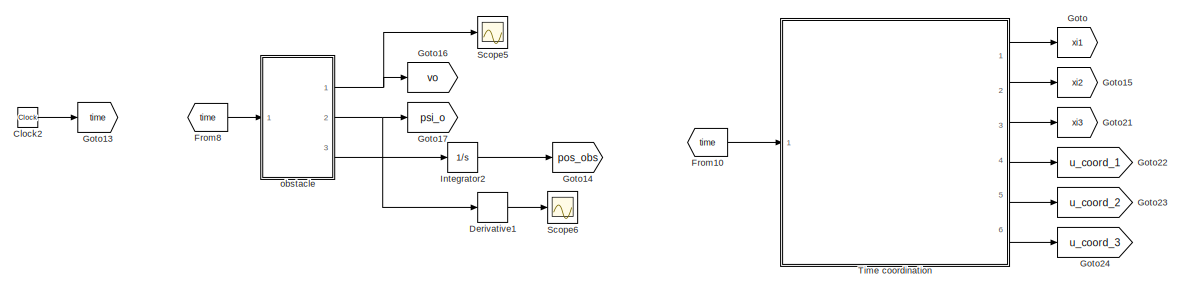
[diagram: root canvas - part 1/5, top left region]
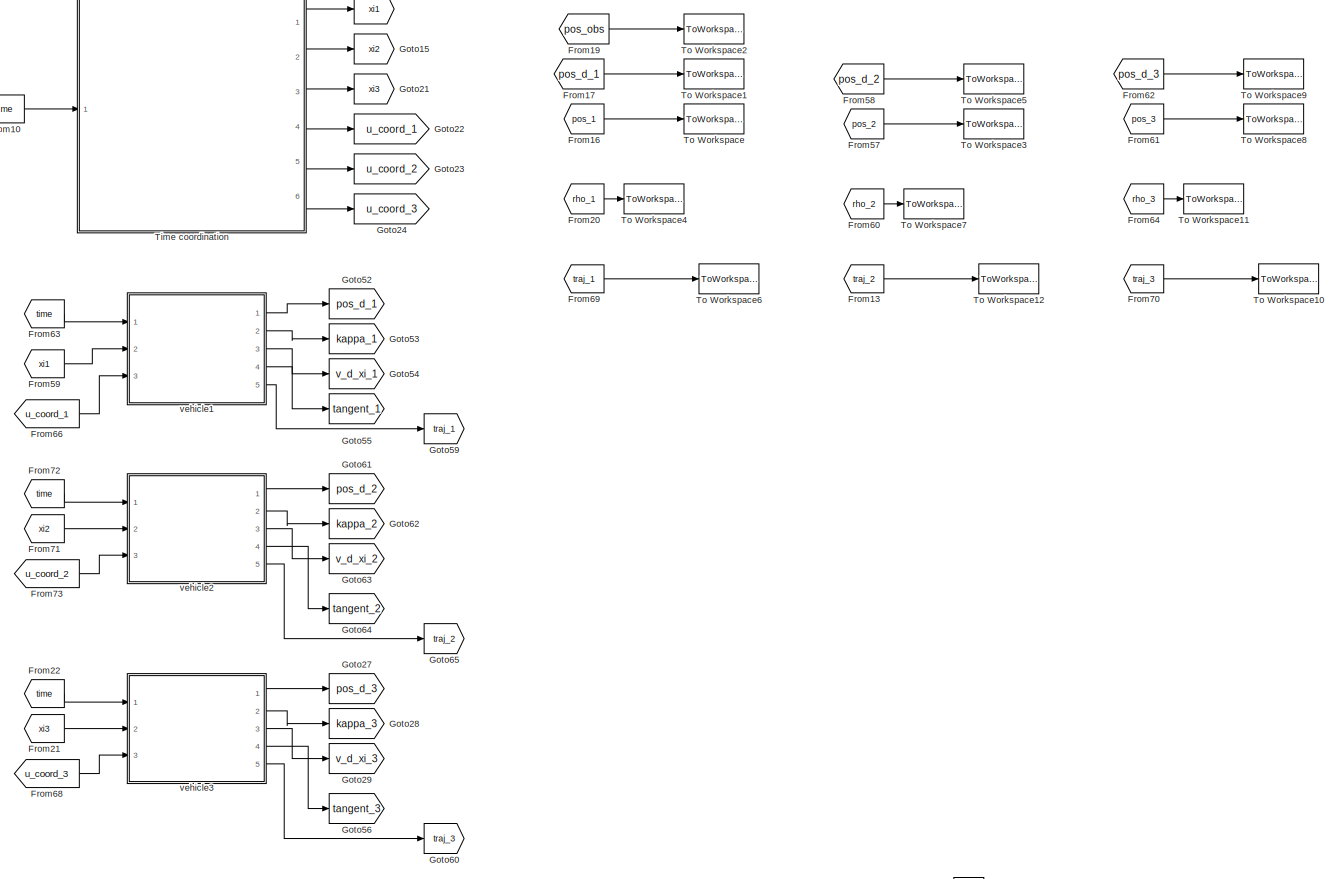
[diagram: root canvas - part 2/5, top right region]
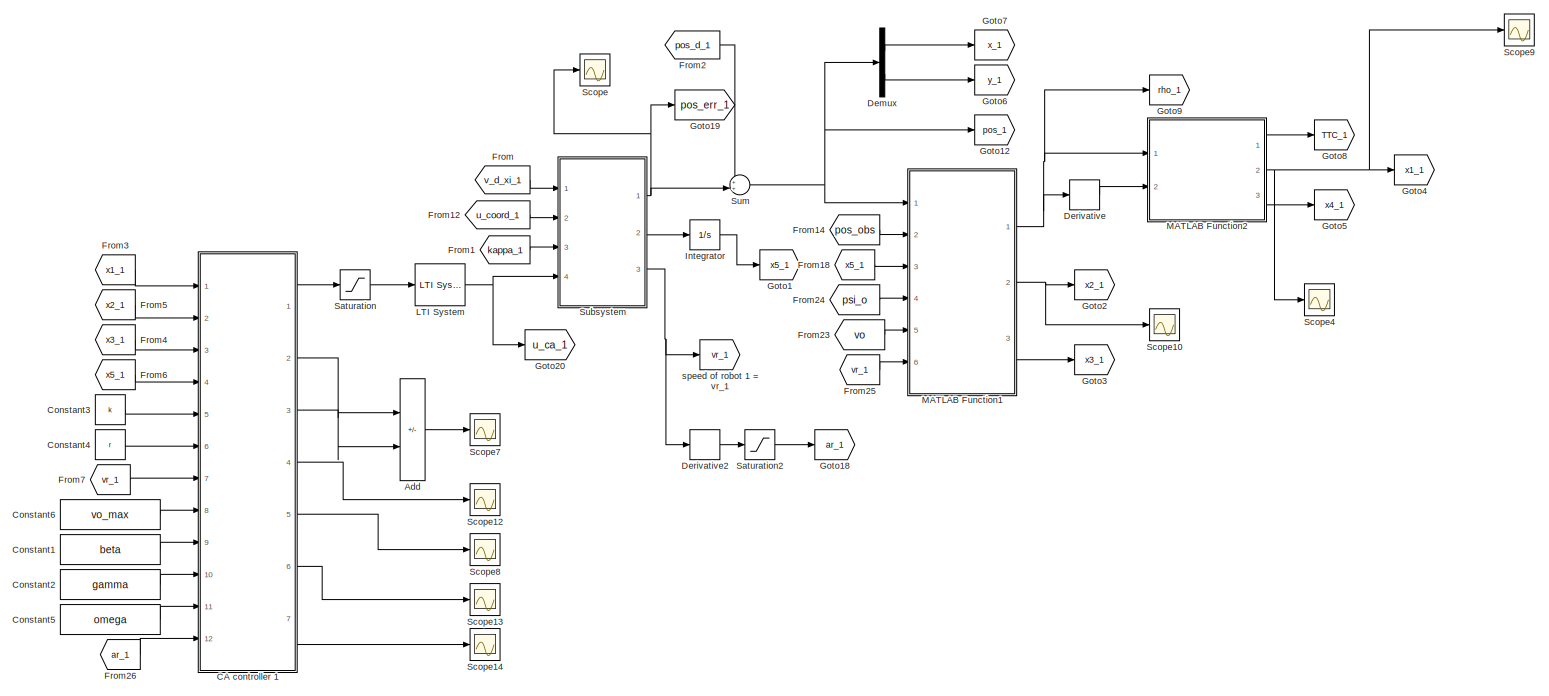
[diagram: root canvas - part 3/5, full width, middle band]
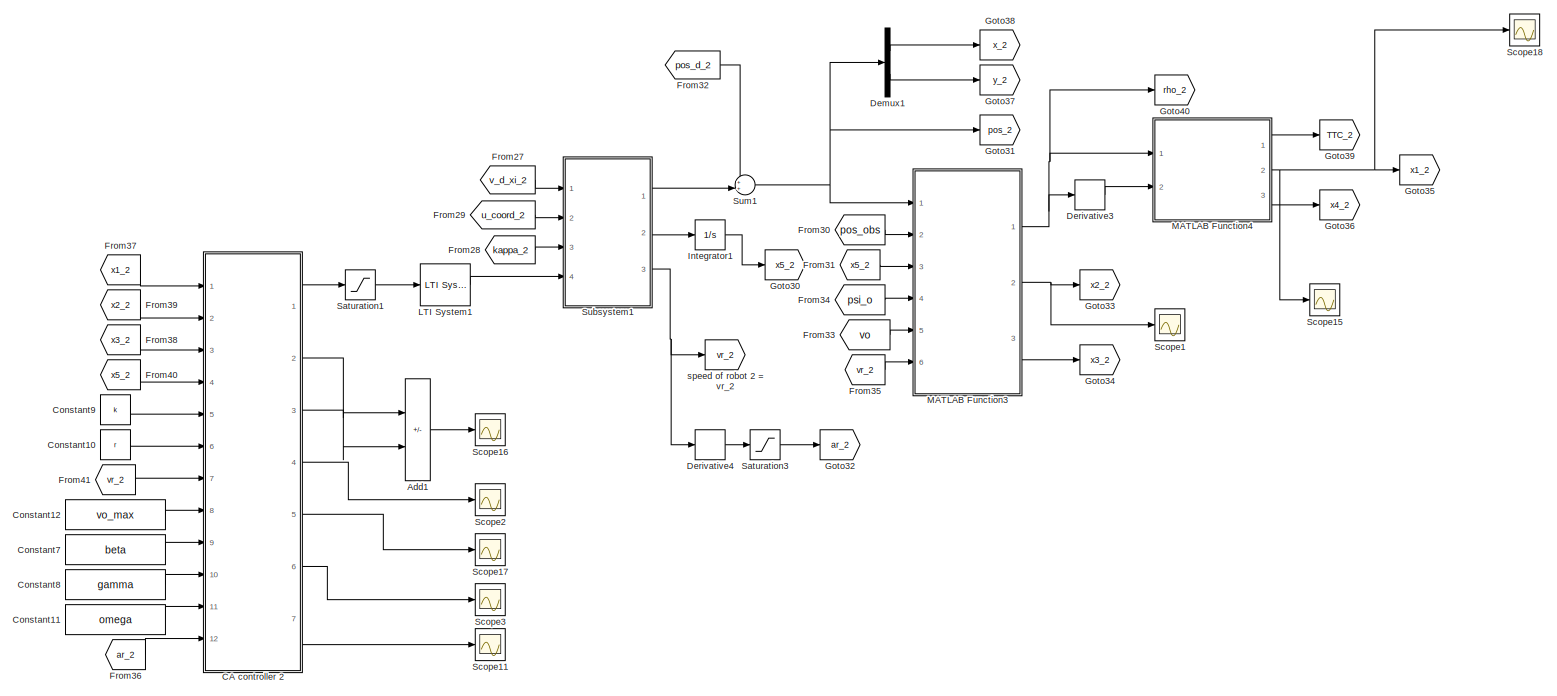
[diagram: root canvas - part 4/5, full width, middle band]
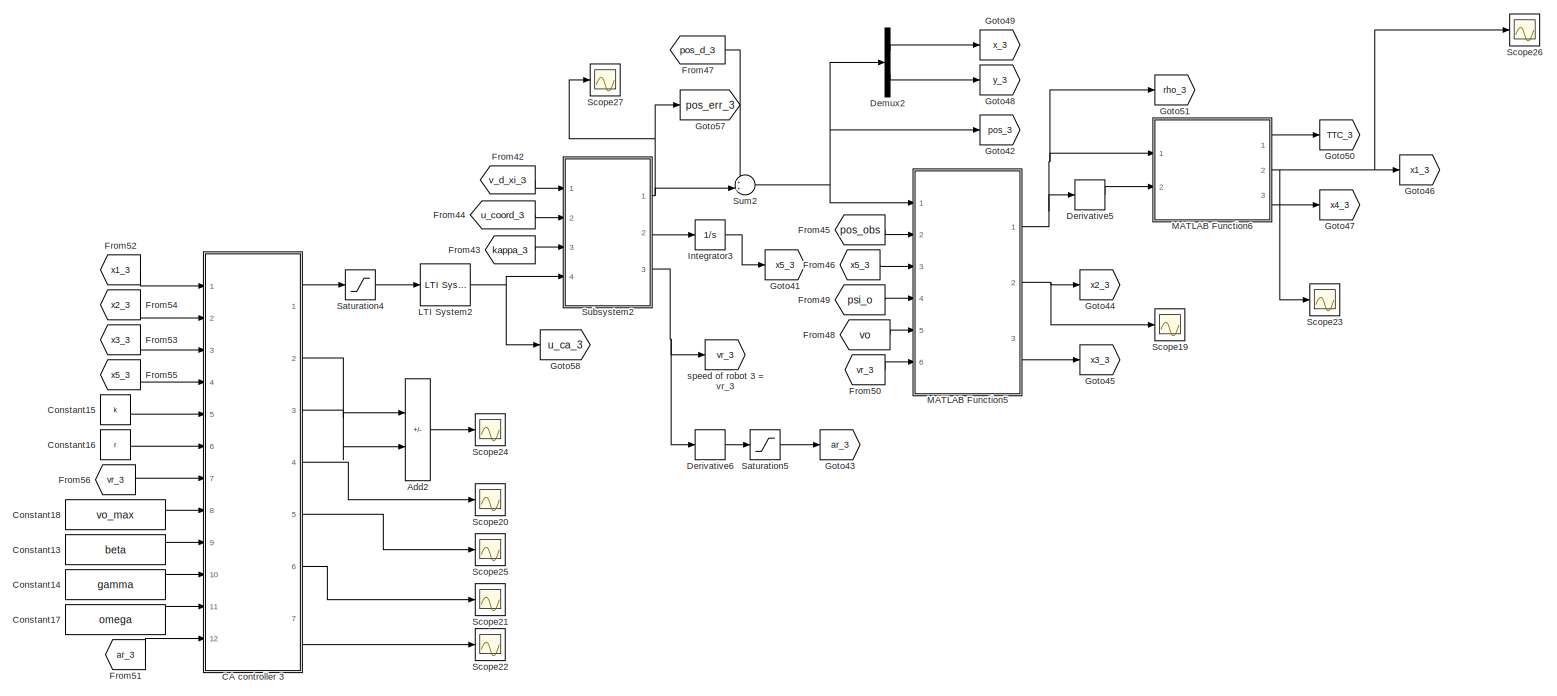
[diagram: root canvas - part 5/5, full width, bottom band]
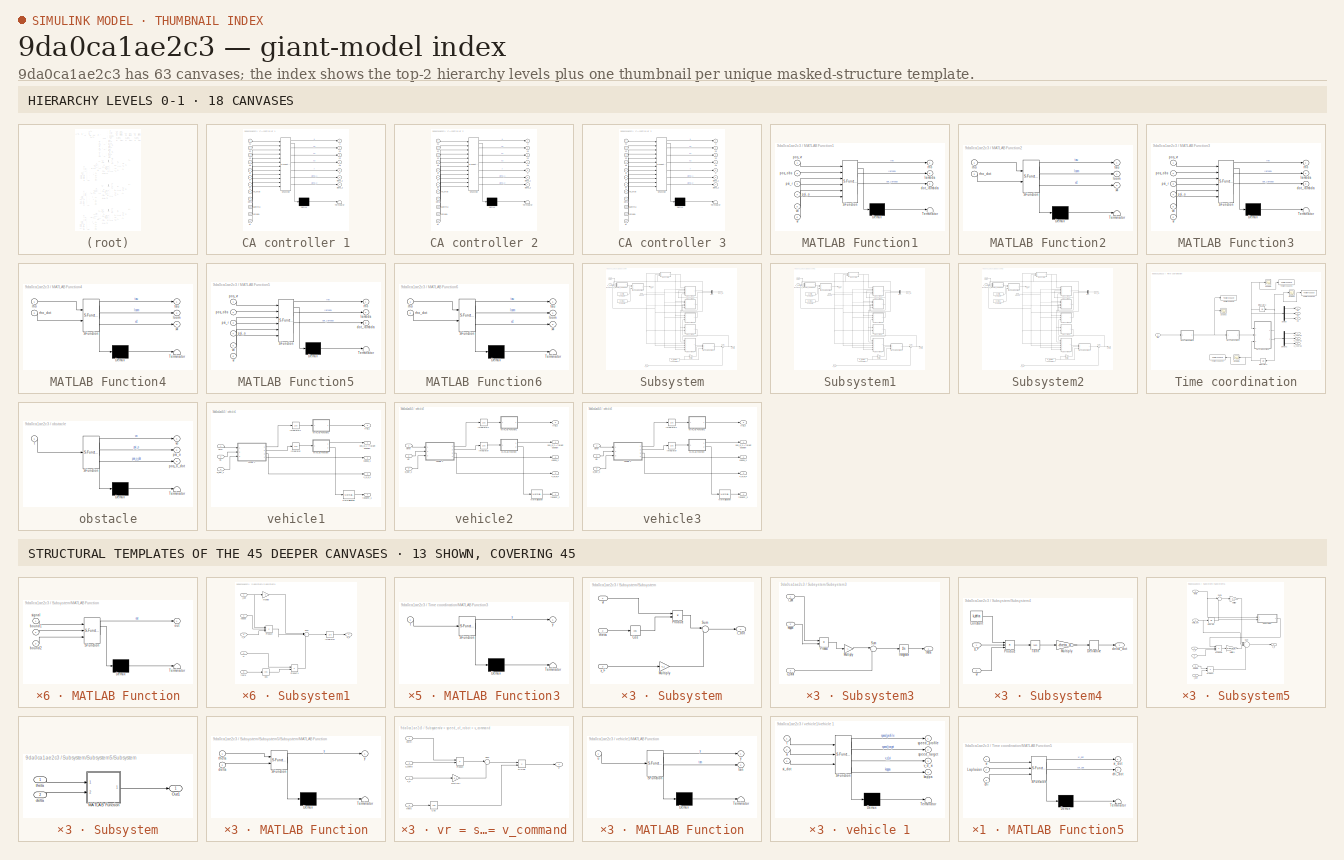
[diagram: thumbnail index - top-2 hierarchy levels (18 canvases) + 13 structural-template representatives of the remaining 45 canvases]
MODEL slx_9da0ca1ae2c3
KIND model
CONFIG AbsTol = auto
CONFIG EnableMultiTasking = off
CONFIG FixedStep = 0.01
CONFIG MaxStep = auto
CONFIG MinStep = 0.01
CONFIG RelTol = 1e-3
CONFIG SampleTimeConstraint = Unconstrained
CONFIG Solver = FixedStepAuto
CONFIG SolverName = FixedStepAuto
CONFIG StartTime = 0.0
CONFIG StopTime = 30
BLOCK [Sum] Add
  IconShape = rectangular
  Inputs = +-
  Ports = [2, 1]
BLOCK [Sum] Add1
  IconShape = rectangular
  Inputs = +-
  Ports = [2, 1]
BLOCK [Sum] Add2
  IconShape = rectangular
  Inputs = +-
  Ports = [2, 1]
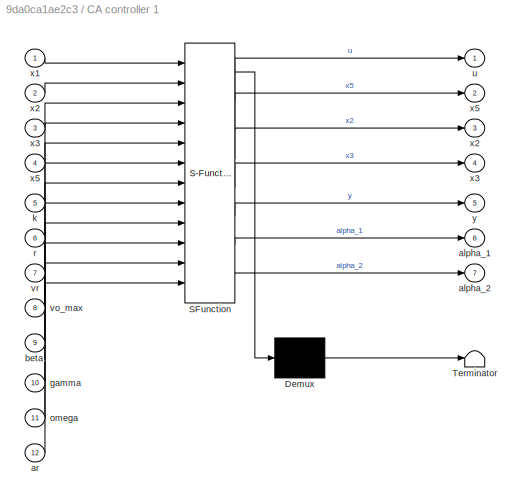
BLOCK [SubSystem] CA controller 1
  ErrorFcn = Stateflow.Translate.translate
  PermitHierarchicalResolution = ExplicitOnly
  Ports = [12, 7]
  RequestExecContextInheritance = off
  SFBlockType = MATLAB Function
  TreatAsAtomicUnit = on
BLOCK [Demux] CA controller 1/ Demux 
  Outputs = 1
  Ports = [1, 1]
BLOCK [S-Function] CA controller 1/ SFunction 
  EnableBusSupport = off
  FunctionName = sf_sfun
  PortCounts = [12 8]
  Ports = [12, 8]
  SFcnIsStateOwnerBlock = off
  SFunctionDeploymentMode = off
  Tag = Stateflow S-Function 4
BLOCK [Terminator] CA controller 1/ Terminator 
BLOCK [Outport] CA controller 1/alpha_1
  Port = 6
  VectorParamsAs1DForOutWhenUnconnected = off
BLOCK [Outport] CA controller 1/alpha_2
  Port = 7
  VectorParamsAs1DForOutWhenUnconnected = off
BLOCK [Inport] CA controller 1/ar
  Port = 12
BLOCK [Inport] CA controller 1/beta
  Port = 9
BLOCK [Inport] CA controller 1/gamma
  Port = 10
BLOCK [Inport] CA controller 1/k
  Port = 5
BLOCK [Inport] CA controller 1/omega
  Port = 11
BLOCK [Inport] CA controller 1/r
  Port = 6
BLOCK [Outport] CA controller 1/u
  VectorParamsAs1DForOutWhenUnconnected = off
BLOCK [Inport] CA controller 1/vo_max
  Port = 8
BLOCK [Inport] CA controller 1/vr
  Port = 7
BLOCK [Inport] CA controller 1/x1
BLOCK [Outport] CA controller 1/x2
  Port = 3
  VectorParamsAs1DForOutWhenUnconnected = off
BLOCK [Inport] CA controller 1/x2 
  Port = 2
BLOCK [Outport] CA controller 1/x3
  Port = 4
  VectorParamsAs1DForOutWhenUnconnected = off
BLOCK [Inport] CA controller 1/x3 
  Port = 3
BLOCK [Outport] CA controller 1/x5
  Port = 2
  VectorParamsAs1DForOutWhenUnconnected = off
BLOCK [Inport] CA controller 1/x5 
  Port = 4
BLOCK [Outport] CA controller 1/y
  Port = 5
  VectorParamsAs1DForOutWhenUnconnected = off
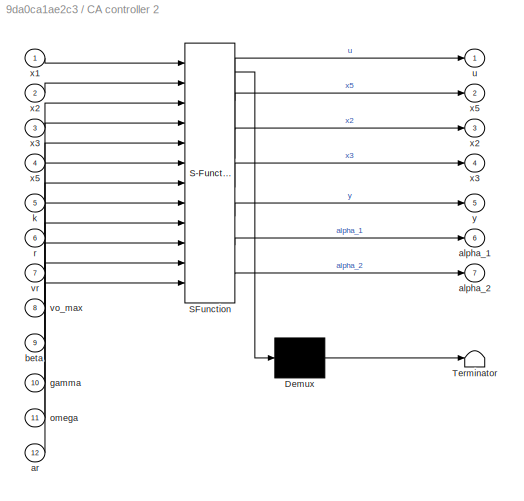
BLOCK [SubSystem] CA controller 2
  ErrorFcn = Stateflow.Translate.translate
  PermitHierarchicalResolution = ExplicitOnly
  Ports = [12, 7]
  RequestExecContextInheritance = off
  SFBlockType = MATLAB Function
  TreatAsAtomicUnit = on
BLOCK [Demux] CA controller 2/ Demux 
  Outputs = 1
  Ports = [1, 1]
BLOCK [S-Function] CA controller 2/ SFunction 
  EnableBusSupport = off
  FunctionName = sf_sfun
  PortCounts = [12 8]
  Ports = [12, 8]
  SFcnIsStateOwnerBlock = off
  SFunctionDeploymentMode = off
  Tag = Stateflow S-Function 17
BLOCK [Terminator] CA controller 2/ Terminator 
BLOCK [Outport] CA controller 2/alpha_1
  Port = 6
  VectorParamsAs1DForOutWhenUnconnected = off
BLOCK [Outport] CA controller 2/alpha_2
  Port = 7
  VectorParamsAs1DForOutWhenUnconnected = off
BLOCK [Inport] CA controller 2/ar
  Port = 12
BLOCK [Inport] CA controller 2/beta
  Port = 9
BLOCK [Inport] CA controller 2/gamma
  Port = 10
BLOCK [Inport] CA controller 2/k
  Port = 5
BLOCK [Inport] CA controller 2/omega
  Port = 11
BLOCK [Inport] CA controller 2/r
  Port = 6
BLOCK [Outport] CA controller 2/u
  VectorParamsAs1DForOutWhenUnconnected = off
BLOCK [Inport] CA controller 2/vo_max
  Port = 8
BLOCK [Inport] CA controller 2/vr
  Port = 7
BLOCK [Inport] CA controller 2/x1
BLOCK [Outport] CA controller 2/x2
  Port = 3
  VectorParamsAs1DForOutWhenUnconnected = off
BLOCK [Inport] CA controller 2/x2 
  Port = 2
BLOCK [Outport] CA controller 2/x3
  Port = 4
  VectorParamsAs1DForOutWhenUnconnected = off
BLOCK [Inport] CA controller 2/x3 
  Port = 3
BLOCK [Outport] CA controller 2/x5
  Port = 2
  VectorParamsAs1DForOutWhenUnconnected = off
BLOCK [Inport] CA controller 2/x5 
  Port = 4
BLOCK [Outport] CA controller 2/y
  Port = 5
  VectorParamsAs1DForOutWhenUnconnected = off
BLOCK [SubSystem] CA controller 3
  ErrorFcn = Stateflow.Translate.translate
  PermitHierarchicalResolution = ExplicitOnly
  Ports = [12, 7]
  RequestExecContextInheritance = off
  SFBlockType = MATLAB Function
  TreatAsAtomicUnit = on
BLOCK [Demux] CA controller 3/ Demux 
  Outputs = 1
  Ports = [1, 1]
BLOCK [S-Function] CA controller 3/ SFunction 
  EnableBusSupport = off
  FunctionName = sf_sfun
  PortCounts = [12 8]
  Ports = [12, 8]
  SFcnIsStateOwnerBlock = off
  SFunctionDeploymentMode = off
  Tag = Stateflow S-Function 23
BLOCK [Terminator] CA controller 3/ Terminator 
BLOCK [Outport] CA controller 3/alpha_1
  Port = 6
  VectorParamsAs1DForOutWhenUnconnected = off
BLOCK [Outport] CA controller 3/alpha_2
  Port = 7
  VectorParamsAs1DForOutWhenUnconnected = off
BLOCK [Inport] CA controller 3/ar
  Port = 12
BLOCK [Inport] CA controller 3/beta
  Port = 9
BLOCK [Inport] CA controller 3/gamma
  Port = 10
BLOCK [Inport] CA controller 3/k
  Port = 5
BLOCK [Inport] CA controller 3/omega
  Port = 11
BLOCK [Inport] CA controller 3/r
  Port = 6
BLOCK [Outport] CA controller 3/u
  VectorParamsAs1DForOutWhenUnconnected = off
BLOCK [Inport] CA controller 3/vo_max
  Port = 8
BLOCK [Inport] CA controller 3/vr
  Port = 7
BLOCK [Inport] CA controller 3/x1
BLOCK [Outport] CA controller 3/x2
  Port = 3
  VectorParamsAs1DForOutWhenUnconnected = off
BLOCK [Inport] CA controller 3/x2 
  Port = 2
BLOCK [Outport] CA controller 3/x3
  Port = 4
  VectorParamsAs1DForOutWhenUnconnected = off
BLOCK [Inport] CA controller 3/x3 
  Port = 3
BLOCK [Outport] CA controller 3/x5
  Port = 2
  VectorParamsAs1DForOutWhenUnconnected = off
BLOCK [Inport] CA controller 3/x5 
  Port = 4
BLOCK [Outport] CA controller 3/y
  Port = 5
  VectorParamsAs1DForOutWhenUnconnected = off
BLOCK [Clock] Clock2
BLOCK [Constant] Constant1
  Value = beta
BLOCK [Constant] Constant10
  Value = r
BLOCK [Constant] Constant11
  Value = omega
BLOCK [Constant] Constant12
  Value = vo_max
BLOCK [Constant] Constant13
  Value = beta
BLOCK [Constant] Constant14
  Value = gamma
BLOCK [Constant] Constant15
  Value = k
BLOCK [Constant] Constant16
  Value = r
BLOCK [Constant] Constant17
  Value = omega
BLOCK [Constant] Constant18
  Value = vo_max
BLOCK [Constant] Constant2
  Value = gamma
BLOCK [Constant] Constant3
  Value = k
BLOCK [Constant] Constant4
  Value = r
BLOCK [Constant] Constant5
  Value = omega
BLOCK [Constant] Constant6
  Value = vo_max
BLOCK [Constant] Constant7
  Value = beta
BLOCK [Constant] Constant8
  Value = gamma
BLOCK [Constant] Constant9
  Value = k
BLOCK [Demux] Demux
  Outputs = 2
  Ports = [1, 2]
BLOCK [Demux] Demux1
  Outputs = 2
  Ports = [1, 2]
BLOCK [Demux] Demux2
  Outputs = 2
  Ports = [1, 2]
BLOCK [Derivative] Derivative
  CoefficientInTFapproximation = 500
BLOCK [Derivative] Derivative1
  CoefficientInTFapproximation = 500
BLOCK [Derivative] Derivative2
  CoefficientInTFapproximation = 500
BLOCK [Derivative] Derivative3
  CoefficientInTFapproximation = 500
BLOCK [Derivative] Derivative4
  CoefficientInTFapproximation = 500
BLOCK [Derivative] Derivative5
  CoefficientInTFapproximation = 500
BLOCK [Derivative] Derivative6
  CoefficientInTFapproximation = 500
BLOCK [From] From
  GotoTag = v_d_xi_1
BLOCK [From] From1
  GotoTag = kappa_1
BLOCK [From] From10
  GotoTag = time
BLOCK [From] From12
  GotoTag = u_coord_1
BLOCK [From] From13
  GotoTag = traj_2
BLOCK [From] From14
  GotoTag = pos_obs
BLOCK [From] From16
  GotoTag = pos_1
BLOCK [From] From17
  GotoTag = pos_d_1
BLOCK [From] From18
  GotoTag = x5_1
BLOCK [From] From19
  GotoTag = pos_obs
BLOCK [From] From2
  GotoTag = pos_d_1
BLOCK [From] From20
  GotoTag = rho_1
BLOCK [From] From21
  GotoTag = xi3
BLOCK [From] From22
  GotoTag = time
BLOCK [From] From23
  GotoTag = vo
BLOCK [From] From24
  GotoTag = psi_o
BLOCK [From] From25
  GotoTag = vr_1
BLOCK [From] From26
  GotoTag = ar_1
BLOCK [From] From27
  GotoTag = v_d_xi_2
BLOCK [From] From28
  GotoTag = kappa_2
BLOCK [From] From29
  GotoTag = u_coord_2
BLOCK [From] From3
  GotoTag = x1_1
BLOCK [From] From30
  GotoTag = pos_obs
BLOCK [From] From31
  GotoTag = x5_2
BLOCK [From] From32
  GotoTag = pos_d_2
BLOCK [From] From33
  GotoTag = vo
BLOCK [From] From34
  GotoTag = psi_o
BLOCK [From] From35
  GotoTag = vr_2
BLOCK [From] From36
  GotoTag = ar_2
BLOCK [From] From37
  GotoTag = x1_2
BLOCK [From] From38
  GotoTag = x3_2
BLOCK [From] From39
  GotoTag = x2_2
BLOCK [From] From4
  GotoTag = x3_1
BLOCK [From] From40
  GotoTag = x5_2
BLOCK [From] From41
  GotoTag = vr_2
BLOCK [From] From42
  GotoTag = v_d_xi_3
BLOCK [From] From43
  GotoTag = kappa_3
BLOCK [From] From44
  GotoTag = u_coord_3
BLOCK [From] From45
  GotoTag = pos_obs
BLOCK [From] From46
  GotoTag = x5_3
BLOCK [From] From47
  GotoTag = pos_d_3
BLOCK [From] From48
  GotoTag = vo
BLOCK [From] From49
  GotoTag = psi_o
BLOCK [From] From5
  GotoTag = x2_1
BLOCK [From] From50
  GotoTag = vr_3
BLOCK [From] From51
  GotoTag = ar_3
BLOCK [From] From52
  GotoTag = x1_3
BLOCK [From] From53
  GotoTag = x3_3
BLOCK [From] From54
  GotoTag = x2_3
BLOCK [From] From55
  GotoTag = x5_3
BLOCK [From] From56
  GotoTag = vr_3
BLOCK [From] From57
  GotoTag = pos_2
BLOCK [From] From58
  GotoTag = pos_d_2
BLOCK [From] From59
  GotoTag = xi1
BLOCK [From] From6
  GotoTag = x5_1
BLOCK [From] From60
  GotoTag = rho_2
BLOCK [From] From61
  GotoTag = pos_3
BLOCK [From] From62
  GotoTag = pos_d_3
BLOCK [From] From63
  GotoTag = time
BLOCK [From] From64
  GotoTag = rho_3
BLOCK [From] From66
  GotoTag = u_coord_1
BLOCK [From] From68
  GotoTag = u_coord_3
BLOCK [From] From69
  GotoTag = traj_1
BLOCK [From] From7
  GotoTag = vr_1
BLOCK [From] From70
  GotoTag = traj_3
BLOCK [From] From71
  GotoTag = xi2
BLOCK [From] From72
  GotoTag = time
BLOCK [From] From73
  GotoTag = u_coord_2
BLOCK [From] From8
  GotoTag = time
BLOCK [Goto] Goto
  GotoTag = xi1
BLOCK [Goto] Goto1
  GotoTag = x5_1
BLOCK [Goto] Goto12
  GotoTag = pos_1
BLOCK [Goto] Goto13
  GotoTag = time
BLOCK [Goto] Goto14
  GotoTag = pos_obs
BLOCK [Goto] Goto15
  GotoTag = xi2
BLOCK [Goto] Goto16
  GotoTag = vo
BLOCK [Goto] Goto17
  GotoTag = psi_o
BLOCK [Goto] Goto18
  GotoTag = ar_1
BLOCK [Goto] Goto19
  GotoTag = pos_err_1
BLOCK [Goto] Goto2
  GotoTag = x2_1
BLOCK [Goto] Goto20
  GotoTag = u_ca_1
BLOCK [Goto] Goto21
  GotoTag = xi3
BLOCK [Goto] Goto22
  GotoTag = u_coord_1
BLOCK [Goto] Goto23
  GotoTag = u_coord_2
BLOCK [Goto] Goto24
  GotoTag = u_coord_3
BLOCK [Goto] Goto27
  GotoTag = pos_d_3
BLOCK [Goto] Goto28
  GotoTag = kappa_3
BLOCK [Goto] Goto29
  GotoTag = v_d_xi_3
BLOCK [Goto] Goto3
  GotoTag = x3_1
BLOCK [Goto] Goto30
  GotoTag = x5_2
BLOCK [Goto] Goto31
  GotoTag = pos_2
BLOCK [Goto] Goto32
  GotoTag = ar_2
BLOCK [Goto] Goto33
  GotoTag = x2_2
BLOCK [Goto] Goto34
  GotoTag = x3_2
BLOCK [Goto] Goto35
  GotoTag = x1_2
BLOCK [Goto] Goto36
  GotoTag = x4_2
BLOCK [Goto] Goto37
  GotoTag = y_2
BLOCK [Goto] Goto38
  GotoTag = x_2
BLOCK [Goto] Goto39
  GotoTag = TTC_2
BLOCK [Goto] Goto4
  GotoTag = x1_1
BLOCK [Goto] Goto40
  GotoTag = rho_2
BLOCK [Goto] Goto41
  GotoTag = x5_3
BLOCK [Goto] Goto42
  GotoTag = pos_3
BLOCK [Goto] Goto43
  GotoTag = ar_3
BLOCK [Goto] Goto44
  GotoTag = x2_3
BLOCK [Goto] Goto45
  GotoTag = x3_3
BLOCK [Goto] Goto46
  GotoTag = x1_3
BLOCK [Goto] Goto47
  GotoTag = x4_3
BLOCK [Goto] Goto48
  GotoTag = y_3
BLOCK [Goto] Goto49
  GotoTag = x_3
BLOCK [Goto] Goto5
  GotoTag = x4_1
BLOCK [Goto] Goto50
  GotoTag = TTC_3
BLOCK [Goto] Goto51
  GotoTag = rho_3
BLOCK [Goto] Goto52
  GotoTag = pos_d_1
BLOCK [Goto] Goto53
  GotoTag = kappa_1
BLOCK [Goto] Goto54
  GotoTag = v_d_xi_1
BLOCK [Goto] Goto55
  GotoTag = tangent_1
BLOCK [Goto] Goto56
  GotoTag = tangent_3
BLOCK [Goto] Goto57
  GotoTag = pos_err_3
BLOCK [Goto] Goto58
  GotoTag = u_ca_3
BLOCK [Goto] Goto59
  GotoTag = traj_1
BLOCK [Goto] Goto6
  GotoTag = y_1
BLOCK [Goto] Goto60
  GotoTag = traj_3
BLOCK [Goto] Goto61
  GotoTag = pos_d_2
BLOCK [Goto] Goto62
  GotoTag = kappa_2
BLOCK [Goto] Goto63
  GotoTag = v_d_xi_2
BLOCK [Goto] Goto64
  GotoTag = tangent_2
BLOCK [Goto] Goto65
  GotoTag = traj_2
BLOCK [Goto] Goto7
  GotoTag = x_1
BLOCK [Goto] Goto8
  GotoTag = TTC_1
BLOCK [Goto] Goto9
  GotoTag = rho_1
BLOCK [Integrator] Integrator
  Ports = [1, 1]
BLOCK [Integrator] Integrator1
  Ports = [1, 1]
BLOCK [Integrator] Integrator2
  InitialCondition = [0 0]'
  Ports = [1, 1]
BLOCK [Integrator] Integrator3
  Ports = [1, 1]
BLOCK [Reference] LTI System  REF=cstblocks/LTI System
  Ports = [1, 1]
  SourceBlock = cstblocks/LTI System
  SourceProductBaseCode = CT
  SourceType = LTI Block
BLOCK [Reference] LTI System1  REF=cstblocks/LTI System
  Ports = [1, 1]
  SourceBlock = cstblocks/LTI System
  SourceProductBaseCode = CT
  SourceType = LTI Block
BLOCK [Reference] LTI System2  REF=cstblocks/LTI System
  Ports = [1, 1]
  SourceBlock = cstblocks/LTI System
  SourceProductBaseCode = CT
  SourceType = LTI Block
BLOCK [SubSystem] MATLAB Function1
  ErrorFcn = Stateflow.Translate.translate
  PermitHierarchicalResolution = ExplicitOnly
  Ports = [6, 3]
  RequestExecContextInheritance = off
  SFBlockType = MATLAB Function
  TreatAsAtomicUnit = on
BLOCK [Demux] MATLAB Function1/ Demux 
  Outputs = 1
  Ports = [1, 1]
BLOCK [S-Function] MATLAB Function1/ SFunction 
  EnableBusSupport = off
  FunctionName = sf_sfun
  PortCounts = [6 4]
  Ports = [6, 4]
  SFcnIsStateOwnerBlock = off
  SFunctionDeploymentMode = off
  Tag = Stateflow S-Function 1
BLOCK [Terminator] MATLAB Function1/ Terminator 
BLOCK [Outport] MATLAB Function1/dot_lambda
  Port = 3
  VectorParamsAs1DForOutWhenUnconnected = off
BLOCK [Outport] MATLAB Function1/lambda
  Port = 2
  VectorParamsAs1DForOutWhenUnconnected = off
BLOCK [Inport] MATLAB Function1/pos_obs
  Port = 2
BLOCK [Inport] MATLAB Function1/pos_vr
BLOCK [Inport] MATLAB Function1/psi_o
  Port = 4
BLOCK [Inport] MATLAB Function1/psi_r
  Port = 3
BLOCK [Outport] MATLAB Function1/rho
  VectorParamsAs1DForOutWhenUnconnected = off
BLOCK [Inport] MATLAB Function1/vo
  Port = 5
BLOCK [Inport] MATLAB Function1/vr
  Port = 6
BLOCK [SubSystem] MATLAB Function2
  ErrorFcn = Stateflow.Translate.translate
  PermitHierarchicalResolution = ExplicitOnly
  Ports = [2, 3]
  RequestExecContextInheritance = off
  SFBlockType = MATLAB Function
  TreatAsAtomicUnit = on
BLOCK [Demux] MATLAB Function2/ Demux 
  Outputs = 1
  Ports = [1, 1]
BLOCK [S-Function] MATLAB Function2/ SFunction 
  EnableBusSupport = off
  FunctionName = sf_sfun
  PortCounts = [2 4]
  Ports = [2, 4]
  SFcnIsStateOwnerBlock = off
  SFunctionDeploymentMode = off
  Tag = Stateflow S-Function 3
BLOCK [Terminator] MATLAB Function2/ Terminator 
BLOCK [Outport] MATLAB Function2/loom
  Port = 2
  VectorParamsAs1DForOutWhenUnconnected = off
BLOCK [Inport] MATLAB Function2/rho
BLOCK [Inport] MATLAB Function2/rho_dot
  Port = 2
BLOCK [Outport] MATLAB Function2/tau
  VectorParamsAs1DForOutWhenUnconnected = off
BLOCK [Outport] MATLAB Function2/x4
  Port = 3
  VectorParamsAs1DForOutWhenUnconnected = off
BLOCK [SubSystem] MATLAB Function3
  ErrorFcn = Stateflow.Translate.translate
  PermitHierarchicalResolution = ExplicitOnly
  Ports = [6, 3]
  RequestExecContextInheritance = off
  SFBlockType = MATLAB Function
  TreatAsAtomicUnit = on
BLOCK [Demux] MATLAB Function3/ Demux 
  Outputs = 1
  Ports = [1, 1]
BLOCK [S-Function] MATLAB Function3/ SFunction 
  EnableBusSupport = off
  FunctionName = sf_sfun
  PortCounts = [6 4]
  Ports = [6, 4]
  SFcnIsStateOwnerBlock = off
  SFunctionDeploymentMode = off
  Tag = Stateflow S-Function 18
BLOCK [Terminator] MATLAB Function3/ Terminator 
BLOCK [Outport] MATLAB Function3/dot_lambda
  Port = 3
  VectorParamsAs1DForOutWhenUnconnected = off
BLOCK [Outport] MATLAB Function3/lambda
  Port = 2
  VectorParamsAs1DForOutWhenUnconnected = off
BLOCK [Inport] MATLAB Function3/pos_obs
  Port = 2
BLOCK [Inport] MATLAB Function3/pos_vr
BLOCK [Inport] MATLAB Function3/psi_o
  Port = 4
BLOCK [Inport] MATLAB Function3/psi_r
  Port = 3
BLOCK [Outport] MATLAB Function3/rho
  VectorParamsAs1DForOutWhenUnconnected = off
BLOCK [Inport] MATLAB Function3/vo
  Port = 5
BLOCK [Inport] MATLAB Function3/vr
  Port = 6
BLOCK [SubSystem] MATLAB Function4
  ErrorFcn = Stateflow.Translate.translate
  PermitHierarchicalResolution = ExplicitOnly
  Ports = [2, 3]
  RequestExecContextInheritance = off
  SFBlockType = MATLAB Function
  TreatAsAtomicUnit = on
BLOCK [Demux] MATLAB Function4/ Demux 
  Outputs = 1
  Ports = [1, 1]
BLOCK [S-Function] MATLAB Function4/ SFunction 
  EnableBusSupport = off
  FunctionName = sf_sfun
  PortCounts = [2 4]
  Ports = [2, 4]
  SFcnIsStateOwnerBlock = off
  SFunctionDeploymentMode = off
  Tag = Stateflow S-Function 19
BLOCK [Terminator] MATLAB Function4/ Terminator 
BLOCK [Outport] MATLAB Function4/loom
  Port = 2
  VectorParamsAs1DForOutWhenUnconnected = off
BLOCK [Inport] MATLAB Function4/rho
BLOCK [Inport] MATLAB Function4/rho_dot
  Port = 2
BLOCK [Outport] MATLAB Function4/tau
  VectorParamsAs1DForOutWhenUnconnected = off
BLOCK [Outport] MATLAB Function4/x4
  Port = 3
  VectorParamsAs1DForOutWhenUnconnected = off
BLOCK [SubSystem] MATLAB Function5
  ErrorFcn = Stateflow.Translate.translate
  PermitHierarchicalResolution = ExplicitOnly
  Ports = [6, 3]
  RequestExecContextInheritance = off
  SFBlockType = MATLAB Function
  TreatAsAtomicUnit = on
BLOCK [Demux] MATLAB Function5/ Demux 
  Outputs = 1
  Ports = [1, 1]
BLOCK [S-Function] MATLAB Function5/ SFunction 
  EnableBusSupport = off
  FunctionName = sf_sfun
  PortCounts = [6 4]
  Ports = [6, 4]
  SFcnIsStateOwnerBlock = off
  SFunctionDeploymentMode = off
  Tag = Stateflow S-Function 24
BLOCK [Terminator] MATLAB Function5/ Terminator 
BLOCK [Outport] MATLAB Function5/dot_lambda
  Port = 3
  VectorParamsAs1DForOutWhenUnconnected = off
BLOCK [Outport] MATLAB Function5/lambda
  Port = 2
  VectorParamsAs1DForOutWhenUnconnected = off
BLOCK [Inport] MATLAB Function5/pos_obs
  Port = 2
BLOCK [Inport] MATLAB Function5/pos_vr
BLOCK [Inport] MATLAB Function5/psi_o
  Port = 4
BLOCK [Inport] MATLAB Function5/psi_r
  Port = 3
BLOCK [Outport] MATLAB Function5/rho
  VectorParamsAs1DForOutWhenUnconnected = off
BLOCK [Inport] MATLAB Function5/vo
  Port = 5
BLOCK [Inport] MATLAB Function5/vr
  Port = 6
BLOCK [SubSystem] MATLAB Function6
  ErrorFcn = Stateflow.Translate.translate
  PermitHierarchicalResolution = ExplicitOnly
  Ports = [2, 3]
  RequestExecContextInheritance = off
  SFBlockType = MATLAB Function
  TreatAsAtomicUnit = on
BLOCK [Demux] MATLAB Function6/ Demux 
  Outputs = 1
  Ports = [1, 1]
BLOCK [S-Function] MATLAB Function6/ SFunction 
  EnableBusSupport = off
  FunctionName = sf_sfun
  PortCounts = [2 4]
  Ports = [2, 4]
  SFcnIsStateOwnerBlock = off
  SFunctionDeploymentMode = off
  Tag = Stateflow S-Function 25
BLOCK [Terminator] MATLAB Function6/ Terminator 
BLOCK [Outport] MATLAB Function6/loom
  Port = 2
  VectorParamsAs1DForOutWhenUnconnected = off
BLOCK [Inport] MATLAB Function6/rho
BLOCK [Inport] MATLAB Function6/rho_dot
  Port = 2
BLOCK [Outport] MATLAB Function6/tau
  VectorParamsAs1DForOutWhenUnconnected = off
BLOCK [Outport] MATLAB Function6/x4
  Port = 3
  VectorParamsAs1DForOutWhenUnconnected = off
BLOCK [Saturate] Saturation
  LowerLimit = -u_ca_max
  UpperLimit = u_ca_max
BLOCK [Saturate] Saturation1
  LowerLimit = -u_ca_max
  UpperLimit = u_ca_max
BLOCK [Saturate] Saturation2
  LowerLimit = -ar_max
  UpperLimit = ar_max
BLOCK [Saturate] Saturation3
  LowerLimit = -ar_max
  UpperLimit = ar_max
BLOCK [Saturate] Saturation4
  LowerLimit = -u_ca_max
  UpperLimit = u_ca_max
BLOCK [Saturate] Saturation5
  LowerLimit = -ar_max
  UpperLimit = ar_max
BLOCK [Scope] Scope
  Floating = off
  NumInputPorts = 1
  Ports = [1]
  ScopeSpecificationString = Simulink.scopes.TimeScopeBlockCfg('CurrentConfiguration', extmgr.ConfigurationSet(extmgr.Configuration('Core','General UI',true),extmgr.Configuration('Core','Source UI',true),extmgr.Configuration('Sources','WiredSimulink',true,'DataLoggingVariableName','ScopeData2'),extmgr.Configuration('Visuals','Time Domain',true,'SerializedDisplays',{struct('MinYLimReal','-0.05135','MaxYLimReal','1.27035','YLab...<+1388ch>
BLOCK [Scope] Scope1
  Floating = off
  NumInputPorts = 1
  Ports = [1]
  ScopeSpecificationString = Simulink.scopes.TimeScopeBlockCfg('CurrentConfiguration', extmgr.ConfigurationSet(extmgr.Configuration('Core','General UI',true),extmgr.Configuration('Core','Source UI',true),extmgr.Configuration('Sources','WiredSimulink',true,'DataLoggingVariableName','ScopeData4'),extmgr.Configuration('Visuals','Time Domain',true,'SerializedDisplays',{struct('MinYLimReal','-3.92641','MaxYLimReal','3.92662','YLab...<+1412ch>
BLOCK [Scope] Scope10
  Floating = off
  NumInputPorts = 1
  Ports = [1]
  ScopeSpecificationString = Simulink.scopes.TimeScopeBlockCfg('CurrentConfiguration', extmgr.ConfigurationSet(extmgr.Configuration('Core','General UI',true),extmgr.Configuration('Core','Source UI',true),extmgr.Configuration('Sources','WiredSimulink',true,'DataLoggingVariableName','ScopeData2'),extmgr.Configuration('Visuals','Time Domain',true,'SerializedDisplays',{struct('MinYLimReal','-3.92641','MaxYLimReal','3.92662','YLab...<+1412ch>
BLOCK [Scope] Scope11
  Floating = off
  NumInputPorts = 1
  Ports = [1]
  ScopeSpecificationString = Simulink.scopes.TimeScopeBlockCfg('CurrentConfiguration', extmgr.ConfigurationSet(extmgr.Configuration('Core','General UI',true),extmgr.Configuration('Core','Source UI',true),extmgr.Configuration('Sources','WiredSimulink',true,'DataLoggingVariableName','ScopeData5'),extmgr.Configuration('Visuals','Time Domain',true,'SerializedDisplays',{struct('MinYLimReal','-1.25','MaxYLimReal','1.25','YLabelReal...<+1436ch>
BLOCK [Scope] Scope12
  Floating = off
  NumInputPorts = 1
  Ports = [1]
  ScopeSpecificationString = Simulink.scopes.TimeScopeBlockCfg('CurrentConfiguration', extmgr.ConfigurationSet(extmgr.Configuration('Core','General UI',true),extmgr.Configuration('Core','Source UI',true),extmgr.Configuration('Sources','WiredSimulink',true,'DataLoggingVariableName','ScopeData1'),extmgr.Configuration('Visuals','Time Domain',true,'SerializedDisplays',{struct('MinYLimReal','-0.02363','MaxYLimReal','0.38514','YLab...<+1407ch>
BLOCK [Scope] Scope13
  Floating = off
  NumInputPorts = 1
  Ports = [1]
  ScopeSpecificationString = Simulink.scopes.TimeScopeBlockCfg('CurrentConfiguration', extmgr.ConfigurationSet(extmgr.Configuration('Core','General UI',true),extmgr.Configuration('Core','Source UI',true),extmgr.Configuration('Sources','WiredSimulink',true,'DataLoggingVariableName','ScopeData2'),extmgr.Configuration('Visuals','Time Domain',true,'SerializedDisplays',{struct('MinYLimReal','-0.00038','MaxYLimReal','0.00833','YLab...<+1454ch>
BLOCK [Scope] Scope14
  Floating = off
  NumInputPorts = 1
  Ports = [1]
  ScopeSpecificationString = Simulink.scopes.TimeScopeBlockCfg('CurrentConfiguration', extmgr.ConfigurationSet(extmgr.Configuration('Core','General UI',true),extmgr.Configuration('Core','Source UI',true),extmgr.Configuration('Sources','WiredSimulink',true,'DataLoggingVariableName','ScopeData3'),extmgr.Configuration('Visuals','Time Domain',true,'SerializedDisplays',{struct('MinYLimReal','-1.25','MaxYLimReal','1.25','YLabelReal...<+1436ch>
BLOCK [Scope] Scope15
  Floating = off
  NumInputPorts = 1
  Ports = [1]
  ScopeSpecificationString = Simulink.scopes.TimeScopeBlockCfg('CurrentConfiguration', extmgr.ConfigurationSet(extmgr.Configuration('Core','General UI',true),extmgr.Configuration('Core','Source UI',true),extmgr.Configuration('Sources','WiredSimulink',true,'DataLoggingVariableName','ScopeData6'),extmgr.Configuration('Visuals','Time Domain',true,'SerializedDisplays',{struct('MinYLimReal','-0.13635','MaxYLimReal','0.01515','YLab...<+1405ch>
BLOCK [Scope] Scope16
  Floating = off
  NumInputPorts = 1
  Ports = [1]
  ScopeSpecificationString = Simulink.scopes.TimeScopeBlockCfg('CurrentConfiguration', extmgr.ConfigurationSet(extmgr.Configuration('Core','General UI',true),extmgr.Configuration('Core','Source UI',true),extmgr.Configuration('Sources','WiredSimulink',true,'DataLoggingVariableName','ScopeData7'),extmgr.Configuration('Visuals','Time Domain',true,'SerializedDisplays',{struct('MinYLimReal','-2.98827','MaxYLimReal','4.86505','YLab...<+1391ch>
BLOCK [Scope] Scope17
  Floating = off
  NumInputPorts = 1
  Ports = [1]
  ScopeSpecificationString = Simulink.scopes.TimeScopeBlockCfg('CurrentConfiguration', extmgr.ConfigurationSet(extmgr.Configuration('Core','General UI',true),extmgr.Configuration('Core','Source UI',true),extmgr.Configuration('Sources','WiredSimulink',true,'DataLoggingVariableName','ScopeData8'),extmgr.Configuration('Visuals','Time Domain',true,'SerializedDisplays',{struct('MinYLimReal','-1.25','MaxYLimReal','1.25','YLabelReal...<+1430ch>
BLOCK [Scope] Scope18
  Floating = off
  NumInputPorts = 1
  Ports = [1]
  ScopeSpecificationString = Simulink.scopes.TimeScopeBlockCfg('CurrentConfiguration', extmgr.ConfigurationSet(extmgr.Configuration('Core','General UI',true),extmgr.Configuration('Core','Source UI',true),extmgr.Configuration('Sources','WiredSimulink',true,'DataLoggingVariableName','ScopeData9'),extmgr.Configuration('Visuals','Time Domain',true,'SerializedDisplays',{struct('MinYLimReal','-0.18231','MaxYLimReal','0.02026','YLab...<+1380ch>
BLOCK [Scope] Scope19
  Floating = off
  NumInputPorts = 1
  Ports = [1]
  ScopeSpecificationString = Simulink.scopes.TimeScopeBlockCfg('CurrentConfiguration', extmgr.ConfigurationSet(extmgr.Configuration('Core','General UI',true),extmgr.Configuration('Core','Source UI',true),extmgr.Configuration('Sources','WiredSimulink',true,'DataLoggingVariableName','ScopeData12'),extmgr.Configuration('Visuals','Time Domain',true,'SerializedDisplays',{struct('MinYLimReal','-3.92641','MaxYLimReal','3.92662','YLa...<+1413ch>
BLOCK [Scope] Scope2
  Floating = off
  NumInputPorts = 1
  Ports = [1]
  ScopeSpecificationString = Simulink.scopes.TimeScopeBlockCfg('CurrentConfiguration', extmgr.ConfigurationSet(extmgr.Configuration('Core','General UI',true),extmgr.Configuration('Core','Source UI',true),extmgr.Configuration('Sources','WiredSimulink',true,'DataLoggingVariableName','ScopeData10'),extmgr.Configuration('Visuals','Time Domain',true,'SerializedDisplays',{struct('MinYLimReal','-0.02363','MaxYLimReal','0.38514','YLa...<+1408ch>
BLOCK [Scope] Scope20
  Floating = off
  NumInputPorts = 1
  Ports = [1]
  ScopeSpecificationString = Simulink.scopes.TimeScopeBlockCfg('CurrentConfiguration', extmgr.ConfigurationSet(extmgr.Configuration('Core','General UI',true),extmgr.Configuration('Core','Source UI',true),extmgr.Configuration('Sources','WiredSimulink',true,'DataLoggingVariableName','ScopeData13'),extmgr.Configuration('Visuals','Time Domain',true,'SerializedDisplays',{struct('MinYLimReal','-0.02363','MaxYLimReal','0.38514','YLa...<+1408ch>
BLOCK [Scope] Scope21
  Floating = off
  NumInputPorts = 1
  Ports = [1]
  ScopeSpecificationString = Simulink.scopes.TimeScopeBlockCfg('CurrentConfiguration', extmgr.ConfigurationSet(extmgr.Configuration('Core','General UI',true),extmgr.Configuration('Core','Source UI',true),extmgr.Configuration('Sources','WiredSimulink',true,'DataLoggingVariableName','ScopeData14'),extmgr.Configuration('Visuals','Time Domain',true,'SerializedDisplays',{struct('MinYLimReal','-0.00038','MaxYLimReal','0.00833','YLa...<+1455ch>
BLOCK [Scope] Scope22
  Floating = off
  NumInputPorts = 1
  Ports = [1]
  ScopeSpecificationString = Simulink.scopes.TimeScopeBlockCfg('CurrentConfiguration', extmgr.ConfigurationSet(extmgr.Configuration('Core','General UI',true),extmgr.Configuration('Core','Source UI',true),extmgr.Configuration('Sources','WiredSimulink',true,'DataLoggingVariableName','ScopeData15'),extmgr.Configuration('Visuals','Time Domain',true,'SerializedDisplays',{struct('MinYLimReal','-1.25','MaxYLimReal','1.25','YLabelRea...<+1437ch>
BLOCK [Scope] Scope23
  Floating = off
  NumInputPorts = 1
  Ports = [1]
  ScopeSpecificationString = Simulink.scopes.TimeScopeBlockCfg('CurrentConfiguration', extmgr.ConfigurationSet(extmgr.Configuration('Core','General UI',true),extmgr.Configuration('Core','Source UI',true),extmgr.Configuration('Sources','WiredSimulink',true,'DataLoggingVariableName','ScopeData16'),extmgr.Configuration('Visuals','Time Domain',true,'SerializedDisplays',{struct('MinYLimReal','-0.13635','MaxYLimReal','0.01515','YLa...<+1406ch>
BLOCK [Scope] Scope24
  Floating = off
  NumInputPorts = 1
  Ports = [1]
  ScopeSpecificationString = Simulink.scopes.TimeScopeBlockCfg('CurrentConfiguration', extmgr.ConfigurationSet(extmgr.Configuration('Core','General UI',true),extmgr.Configuration('Core','Source UI',true),extmgr.Configuration('Sources','WiredSimulink',true,'DataLoggingVariableName','ScopeData17'),extmgr.Configuration('Visuals','Time Domain',true,'SerializedDisplays',{struct('MinYLimReal','-2.98827','MaxYLimReal','4.86505','YLa...<+1392ch>
BLOCK [Scope] Scope25
  Floating = off
  NumInputPorts = 1
  Ports = [1]
  ScopeSpecificationString = Simulink.scopes.TimeScopeBlockCfg('CurrentConfiguration', extmgr.ConfigurationSet(extmgr.Configuration('Core','General UI',true),extmgr.Configuration('Core','Source UI',true),extmgr.Configuration('Sources','WiredSimulink',true,'DataLoggingVariableName','ScopeData18'),extmgr.Configuration('Visuals','Time Domain',true,'SerializedDisplays',{struct('MinYLimReal','-1.25','MaxYLimReal','1.25','YLabelRea...<+1431ch>
BLOCK [Scope] Scope26
  Floating = off
  NumInputPorts = 1
  Ports = [1]
  ScopeSpecificationString = Simulink.scopes.TimeScopeBlockCfg('CurrentConfiguration', extmgr.ConfigurationSet(extmgr.Configuration('Core','General UI',true),extmgr.Configuration('Core','Source UI',true),extmgr.Configuration('Sources','WiredSimulink',true,'DataLoggingVariableName','ScopeData19'),extmgr.Configuration('Visuals','Time Domain',true,'SerializedDisplays',{struct('MinYLimReal','-0.18231','MaxYLimReal','0.02026','YLa...<+1381ch>
BLOCK [Scope] Scope27
  Floating = off
  NumInputPorts = 1
  Ports = [1]
  ScopeSpecificationString = Simulink.scopes.TimeScopeBlockCfg('CurrentConfiguration', extmgr.ConfigurationSet(extmgr.Configuration('Core','General UI',true),extmgr.Configuration('Core','Source UI',true),extmgr.Configuration('Sources','WiredSimulink',true,'DataLoggingVariableName','ScopeData3'),extmgr.Configuration('Visuals','Time Domain',true,'SerializedDisplays',{struct('MinYLimReal','-5.05781','MaxYLimReal','1.82069','YLab...<+1390ch>
BLOCK [Scope] Scope3
  Floating = off
  NumInputPorts = 1
  Ports = [1]
  ScopeSpecificationString = Simulink.scopes.TimeScopeBlockCfg('CurrentConfiguration', extmgr.ConfigurationSet(extmgr.Configuration('Core','General UI',true),extmgr.Configuration('Core','Source UI',true),extmgr.Configuration('Sources','WiredSimulink',true,'DataLoggingVariableName','ScopeData11'),extmgr.Configuration('Visuals','Time Domain',true,'SerializedDisplays',{struct('MinYLimReal','-0.00038','MaxYLimReal','0.00833','YLa...<+1455ch>
BLOCK [Scope] Scope4
  Floating = off
  NumInputPorts = 1
  Ports = [1]
  ScopeSpecificationString = Simulink.scopes.TimeScopeBlockCfg('CurrentConfiguration', extmgr.ConfigurationSet(extmgr.Configuration('Core','General UI',true),extmgr.Configuration('Core','Source UI',true),extmgr.Configuration('Sources','WiredSimulink',true,'DataLoggingVariableName','ScopeData3'),extmgr.Configuration('Visuals','Time Domain',true,'SerializedDisplays',{struct('MinYLimReal','-0.13635','MaxYLimReal','0.01515','YLab...<+1405ch>
BLOCK [Scope] Scope5
  Floating = off
  NumInputPorts = 1
  Ports = [1]
  ScopeSpecificationString = Simulink.scopes.TimeScopeBlockCfg('CurrentConfiguration', extmgr.ConfigurationSet(extmgr.Configuration('Core','General UI',true),extmgr.Configuration('Core','Source UI',true),extmgr.Configuration('Sources','WiredSimulink',true,'DataLoggingVariableName','ScopeData3'),extmgr.Configuration('Visuals','Time Domain',true,'SerializedDisplays',{struct('MinYLimReal','0.9','MaxYLimReal','1.1','YLabelReal','...<+1336ch>
BLOCK [Scope] Scope6
  Floating = off
  NumInputPorts = 1
  Ports = [1]
  ScopeSpecificationString = Simulink.scopes.TimeScopeBlockCfg('CurrentConfiguration', extmgr.ConfigurationSet(extmgr.Configuration('Core','General UI',true),extmgr.Configuration('Core','Source UI',true),extmgr.Configuration('Sources','WiredSimulink',true,'DataLoggingVariableName','ScopeData4'),extmgr.Configuration('Visuals','Time Domain',true,'SerializedDisplays',{struct('MinYLimReal','-0.00497','MaxYLimReal','0.04476','YLab...<+1370ch>
BLOCK [Scope] Scope7
  Floating = off
  NumInputPorts = 1
  Ports = [1]
  ScopeSpecificationString = Simulink.scopes.TimeScopeBlockCfg('CurrentConfiguration', extmgr.ConfigurationSet(extmgr.Configuration('Core','General UI',true),extmgr.Configuration('Core','Source UI',true),extmgr.Configuration('Sources','WiredSimulink',true,'DataLoggingVariableName','ScopeData4'),extmgr.Configuration('Visuals','Time Domain',true,'SerializedDisplays',{struct('MinYLimReal','-2.98827','MaxYLimReal','4.86505','YLab...<+1391ch>
BLOCK [Scope] Scope8
  Floating = off
  NumInputPorts = 1
  Ports = [1]
  ScopeSpecificationString = Simulink.scopes.TimeScopeBlockCfg('CurrentConfiguration', extmgr.ConfigurationSet(extmgr.Configuration('Core','General UI',true),extmgr.Configuration('Core','Source UI',true),extmgr.Configuration('Sources','WiredSimulink',true,'DataLoggingVariableName','ScopeData5'),extmgr.Configuration('Visuals','Time Domain',true,'SerializedDisplays',{struct('MinYLimReal','-1.25','MaxYLimReal','1.25','YLabelReal...<+1430ch>
BLOCK [Scope] Scope9
  Floating = off
  NumInputPorts = 1
  Ports = [1]
  ScopeSpecificationString = Simulink.scopes.TimeScopeBlockCfg('CurrentConfiguration', extmgr.ConfigurationSet(extmgr.Configuration('Core','General UI',true),extmgr.Configuration('Core','Source UI',true),extmgr.Configuration('Sources','WiredSimulink',true,'DataLoggingVariableName','ScopeData4'),extmgr.Configuration('Visuals','Time Domain',true,'SerializedDisplays',{struct('MinYLimReal','-0.18231','MaxYLimReal','0.02026','YLab...<+1380ch>
BLOCK [SubSystem] Subsystem
  Ports = [4, 3]
  RequestExecContextInheritance = off
BLOCK [Constant] Subsystem/Constant7
  Value = vr_min
BLOCK [Constant] Subsystem/Constant8
  Value = vr_max
BLOCK [Constant] Subsystem/Constant9
  Value = u_tr_max
BLOCK [SubSystem] Subsystem/MATLAB Function
  ErrorFcn = Stateflow.Translate.translate
  PermitHierarchicalResolution = ExplicitOnly
  Ports = [3, 1]
  RequestExecContextInheritance = off
  SFBlockType = MATLAB Function
  TreatAsAtomicUnit = on
BLOCK [Demux] Subsystem/MATLAB Function/ Demux 
  Outputs = 1
  Ports = [1, 1]
BLOCK [S-Function] Subsystem/MATLAB Function/ SFunction 
  EnableBusSupport = off
  FunctionName = sf_sfun
  PortCounts = [3 2]
  Ports = [3, 2]
  SFcnIsStateOwnerBlock = off
  SFunctionDeploymentMode = off
  Tag = Stateflow S-Function 5
BLOCK [Terminator] Subsystem/MATLAB Function/ Terminator 
BLOCK [Inport] Subsystem/MATLAB Function/bound1
  Port = 2
BLOCK [Inport] Subsystem/MATLAB Function/bound2
  Port = 3
BLOCK [Outport] Subsystem/MATLAB Function/out
  VectorParamsAs1DForOutWhenUnconnected = off
BLOCK [Inport] Subsystem/MATLAB Function/signal
BLOCK [SubSystem] Subsystem/MATLAB Function1
  ErrorFcn = Stateflow.Translate.translate
  PermitHierarchicalResolution = ExplicitOnly
  Ports = [3, 1]
  RequestExecContextInheritance = off
  SFBlockType = MATLAB Function
  TreatAsAtomicUnit = on
BLOCK [Demux] Subsystem/MATLAB Function1/ Demux 
  Outputs = 1
  Ports = [1, 1]
BLOCK [S-Function] Subsystem/MATLAB Function1/ SFunction 
  EnableBusSupport = off
  FunctionName = sf_sfun
  PortCounts = [3 2]
  Ports = [3, 2]
  SFcnIsStateOwnerBlock = off
  SFunctionDeploymentMode = off
  Tag = Stateflow S-Function 7
BLOCK [Terminator] Subsystem/MATLAB Function1/ Terminator 
BLOCK [Inport] Subsystem/MATLAB Function1/bound1
  Port = 2
BLOCK [Inport] Subsystem/MATLAB Function1/bound2
  Port = 3
BLOCK [Outport] Subsystem/MATLAB Function1/out
  VectorParamsAs1DForOutWhenUnconnected = off
BLOCK [Inport] Subsystem/MATLAB Function1/signal
BLOCK [Gain] Subsystem/Multiply
  Gain = -1
BLOCK [Mux] Subsystem/Mux
  DisplayOption = bar
  Inputs = 2
  Ports = [2, 1]
BLOCK [SubSystem] Subsystem/Subsystem
  Ports = [3, 1]
  RequestExecContextInheritance = off
BLOCK [Trigonometry] Subsystem/Subsystem/Cos
  Operator = cos
  Ports = [1, 1]
BLOCK [Gain] Subsystem/Subsystem/Multiply
  Gain = k_1
BLOCK [Product] Subsystem/Subsystem/Product
  Ports = [2, 1]
BLOCK [Sum] Subsystem/Subsystem/Sum
  Inputs = |++
  Ports = [2, 1]
BLOCK [Outport] Subsystem/Subsystem/l_dot
  VectorParamsAs1DForOutWhenUnconnected = off
BLOCK [Inport] Subsystem/Subsystem/theta
  Port = 2
BLOCK [Inport] Subsystem/Subsystem/vr
BLOCK [Inport] Subsystem/Subsystem/x_F
  Port = 3
BLOCK [SubSystem] Subsystem/Subsystem1
  Ports = [5, 1]
  RequestExecContextInheritance = off
BLOCK [Trigonometry] Subsystem/Subsystem1/Cos
  Operator = cos
  Ports = [1, 1]
BLOCK [Integrator] Subsystem/Subsystem1/Integrator
  InitialCondition = x_F_0_1
  Ports = [1, 1]
BLOCK [Gain] Subsystem/Subsystem1/Multiply
  Gain = -1
BLOCK [Product] Subsystem/Subsystem1/Product
  Inputs = 3
  Ports = [3, 1]
BLOCK [Product] Subsystem/Subsystem1/Product1
  Ports = [2, 1]
BLOCK [Sum] Subsystem/Subsystem1/Sum
  Inputs = |+++
  Ports = [3, 1]
BLOCK [Inport] Subsystem/Subsystem1/kappa
  Port = 2
BLOCK [Inport] Subsystem/Subsystem1/l_dot
BLOCK [Inport] Subsystem/Subsystem1/theta
  Port = 5
BLOCK [Inport] Subsystem/Subsystem1/vr
  Port = 4
BLOCK [Outport] Subsystem/Subsystem1/x_F
  VectorParamsAs1DForOutWhenUnconnected = off
BLOCK [Inport] Subsystem/Subsystem1/y_F
  Port = 3
BLOCK [SubSystem] Subsystem/Subsystem2
  Ports = [5, 1]
  RequestExecContextInheritance = off
BLOCK [Integrator] Subsystem/Subsystem2/Integrator
  InitialCondition = y_F_0_1
  Ports = [1, 1]
BLOCK [Gain] Subsystem/Subsystem2/Multiply
  Gain = -1
BLOCK [Product] Subsystem/Subsystem2/Product
  Inputs = 3
  Ports = [3, 1]
BLOCK [Product] Subsystem/Subsystem2/Product1
  Ports = [2, 1]
BLOCK [Trigonometry] Subsystem/Subsystem2/Sin
  Ports = [1, 1]
BLOCK [Sum] Subsystem/Subsystem2/Sum
  Inputs = |++
  Ports = [2, 1]
BLOCK [Inport] Subsystem/Subsystem2/kappa
  Port = 2
BLOCK [Inport] Subsystem/Subsystem2/l_dot
BLOCK [Inport] Subsystem/Subsystem2/theta
  Port = 5
BLOCK [Inport] Subsystem/Subsystem2/vr
  Port = 4
BLOCK [Inport] Subsystem/Subsystem2/x_F
  Port = 3
BLOCK [Outport] Subsystem/Subsystem2/y_F
  VectorParamsAs1DForOutWhenUnconnected = off
BLOCK [SubSystem] Subsystem/Subsystem3
  Ports = [3, 1]
  RequestExecContextInheritance = off
BLOCK [Integrator] Subsystem/Subsystem3/Integrator
  InitialCondition = theta_0_1
  Ports = [1, 1]
BLOCK [Gain] Subsystem/Subsystem3/Multiply
  Gain = -1
BLOCK [Product] Subsystem/Subsystem3/Product
  Ports = [2, 1]
BLOCK [Sum] Subsystem/Subsystem3/Sum
  Inputs = |++
  Ports = [2, 1]
BLOCK [Inport] Subsystem/Subsystem3/kappa
  Port = 2
BLOCK [Inport] Subsystem/Subsystem3/l_dot
BLOCK [Outport] Subsystem/Subsystem3/theta
  VectorParamsAs1DForOutWhenUnconnected = off
BLOCK [Inport] Subsystem/Subsystem3/u_total
  Port = 3
BLOCK [SubSystem] Subsystem/Subsystem4
  Ports = [2, 1]
  RequestExecContextInheritance = off
BLOCK [Constant] Subsystem/Subsystem4/Constant
  Value = k_delta
BLOCK [Derivative] Subsystem/Subsystem4/Derivative
BLOCK [Gain] Subsystem/Subsystem4/Multiply
  Gain = -theta_a
BLOCK [Product] Subsystem/Subsystem4/Product
  Inputs = 3
  Ports = [3, 1]
BLOCK [Trigonometry] Subsystem/Subsystem4/Tanh
  Operator = tanh
  Ports = [1, 1]
BLOCK [Outport] Subsystem/Subsystem4/delta_dot
  VectorParamsAs1DForOutWhenUnconnected = off
BLOCK [Inport] Subsystem/Subsystem4/vr
  Port = 2
BLOCK [Inport] Subsystem/Subsystem4/y_F
BLOCK [SubSystem] Subsystem/Subsystem5
  Ports = [6, 1]
  RequestExecContextInheritance = off
BLOCK [Integrator] Subsystem/Subsystem5/Integrator
  Ports = [1, 1]
BLOCK [Gain] Subsystem/Subsystem5/Multiply
  Gain = -k_2
BLOCK [Gain] Subsystem/Subsystem5/Multiply1
  Gain = -Gamma
BLOCK [Product] Subsystem/Subsystem5/Product
  Ports = [2, 1]
BLOCK [Product] Subsystem/Subsystem5/Product1
  Inputs = 3
  Ports = [3, 1]
BLOCK [SubSystem] Subsystem/Subsystem5/Subsystem
  Ports = [2, 1]
  RequestExecContextInheritance = off
BLOCK [SubSystem] Subsystem/Subsystem5/Subsystem/MATLAB Function
  ErrorFcn = Stateflow.Translate.translate
  PermitHierarchicalResolution = ExplicitOnly
  Ports = [2, 1]
  RequestExecContextInheritance = off
  SFBlockType = MATLAB Function
  TreatAsAtomicUnit = on
BLOCK [Demux] Subsystem/Subsystem5/Subsystem/MATLAB Function/ Demux 
  Outputs = 1
  Ports = [1, 1]
BLOCK [S-Function] Subsystem/Subsystem5/Subsystem/MATLAB Function/ SFunction 
  EnableBusSupport = off
  FunctionName = sf_sfun
  PortCounts = [2 2]
  Ports = [2, 2]
  SFcnIsStateOwnerBlock = off
  SFunctionDeploymentMode = off
  Tag = Stateflow S-Function 2
BLOCK [Terminator] Subsystem/Subsystem5/Subsystem/MATLAB Function/ Terminator 
BLOCK [Inport] Subsystem/Subsystem5/Subsystem/MATLAB Function/delta
  Port = 2
BLOCK [Inport] Subsystem/Subsystem5/Subsystem/MATLAB Function/theta
BLOCK [Outport] Subsystem/Subsystem5/Subsystem/MATLAB Function/y
  VectorParamsAs1DForOutWhenUnconnected = off
BLOCK [Outport] Subsystem/Subsystem5/Subsystem/Out1
  VectorParamsAs1DForOutWhenUnconnected = off
BLOCK [Inport] Subsystem/Subsystem5/Subsystem/delta
  Port = 2
BLOCK [Inport] Subsystem/Subsystem5/Subsystem/theta
BLOCK [Sum] Subsystem/Subsystem5/Sum
  Inputs = |++++
  Ports = [4, 1]
BLOCK [Sum] Subsystem/Subsystem5/Sum1
  Inputs = |+-
  Ports = [2, 1]
BLOCK [Inport] Subsystem/Subsystem5/delta_dot
BLOCK [Inport] Subsystem/Subsystem5/kappa
  Port = 5
BLOCK [Inport] Subsystem/Subsystem5/l_dot
  Port = 6
BLOCK [Inport] Subsystem/Subsystem5/theta
  Port = 4
BLOCK [Outport] Subsystem/Subsystem5/u_tr
  VectorParamsAs1DForOutWhenUnconnected = off
BLOCK [Inport] Subsystem/Subsystem5/vr
  Port = 3
BLOCK [Inport] Subsystem/Subsystem5/y_F
  Port = 2
BLOCK [Sum] Subsystem/Sum1
  Inputs = |++
  Ports = [2, 1]
BLOCK [Inport] Subsystem/kappa
  Port = 3
BLOCK [Outport] Subsystem/pos_err
  VectorParamsAs1DForOutWhenUnconnected = off
BLOCK [Inport] Subsystem/u_ca
  Port = 4
BLOCK [Inport] Subsystem/u_coord
  Port = 2
BLOCK [Outport] Subsystem/u_total
  Port = 2
  VectorParamsAs1DForOutWhenUnconnected = off
BLOCK [Inport] Subsystem/vd(xi)
BLOCK [Outport] Subsystem/vr
  Port = 3
  VectorParamsAs1DForOutWhenUnconnected = off
BLOCK [SubSystem] Subsystem/vr = speed_of_robot = v_command
  Ports = [4, 1]
  RequestExecContextInheritance = off
BLOCK [Trigonometry] Subsystem/vr = speed_of_robot = v_command/Cos
  Operator = cos
  Ports = [1, 1]
BLOCK [Product] Subsystem/vr = speed_of_robot = v_command/Divide
  Inputs = */
  Ports = [2, 1]
BLOCK [Gain] Subsystem/vr = speed_of_robot = v_command/Multiply
  Gain = k_1
BLOCK [Product] Subsystem/vr = speed_of_robot = v_command/Product
  Ports = [2, 1]
BLOCK [Sum] Subsystem/vr = speed_of_robot = v_command/Sum
  Inputs = |+-
  Ports = [2, 1]
BLOCK [Inport] Subsystem/vr = speed_of_robot = v_command/theta
  Port = 3
BLOCK [Inport] Subsystem/vr = speed_of_robot = v_command/u_coord
  Port = 2
BLOCK [Inport] Subsystem/vr = speed_of_robot = v_command/vd(xi)
BLOCK [Outport] Subsystem/vr = speed_of_robot = v_command/vr
  VectorParamsAs1DForOutWhenUnconnected = off
BLOCK [Inport] Subsystem/vr = speed_of_robot = v_command/x_F
  Port = 4
BLOCK [SubSystem] Subsystem1
  Ports = [4, 3]
  RequestExecContextInheritance = off
BLOCK [Constant] Subsystem1/Constant7
  Value = vr_min
BLOCK [Constant] Subsystem1/Constant8
  Value = vr_max
BLOCK [Constant] Subsystem1/Constant9
  Value = u_tr_max
BLOCK [SubSystem] Subsystem1/MATLAB Function
  ErrorFcn = Stateflow.Translate.translate
  PermitHierarchicalResolution = ExplicitOnly
  Ports = [3, 1]
  RequestExecContextInheritance = off
  SFBlockType = MATLAB Function
  TreatAsAtomicUnit = on
BLOCK [Demux] Subsystem1/MATLAB Function/ Demux 
  Outputs = 1
  Ports = [1, 1]
BLOCK [S-Function] Subsystem1/MATLAB Function/ SFunction 
  EnableBusSupport = off
  FunctionName = sf_sfun
  PortCounts = [3 2]
  Ports = [3, 2]
  SFcnIsStateOwnerBlock = off
  SFunctionDeploymentMode = off
  Tag = Stateflow S-Function 20
BLOCK [Terminator] Subsystem1/MATLAB Function/ Terminator 
BLOCK [Inport] Subsystem1/MATLAB Function/bound1
  Port = 2
BLOCK [Inport] Subsystem1/MATLAB Function/bound2
  Port = 3
BLOCK [Outport] Subsystem1/MATLAB Function/out
  VectorParamsAs1DForOutWhenUnconnected = off
BLOCK [Inport] Subsystem1/MATLAB Function/signal
BLOCK [SubSystem] Subsystem1/MATLAB Function1
  ErrorFcn = Stateflow.Translate.translate
  PermitHierarchicalResolution = ExplicitOnly
  Ports = [3, 1]
  RequestExecContextInheritance = off
  SFBlockType = MATLAB Function
  TreatAsAtomicUnit = on
BLOCK [Demux] Subsystem1/MATLAB Function1/ Demux 
  Outputs = 1
  Ports = [1, 1]
BLOCK [S-Function] Subsystem1/MATLAB Function1/ SFunction 
  EnableBusSupport = off
  FunctionName = sf_sfun
  PortCounts = [3 2]
  Ports = [3, 2]
  SFcnIsStateOwnerBlock = off
  SFunctionDeploymentMode = off
  Tag = Stateflow S-Function 21
BLOCK [Terminator] Subsystem1/MATLAB Function1/ Terminator 
BLOCK [Inport] Subsystem1/MATLAB Function1/bound1
  Port = 2
BLOCK [Inport] Subsystem1/MATLAB Function1/bound2
  Port = 3
BLOCK [Outport] Subsystem1/MATLAB Function1/out
  VectorParamsAs1DForOutWhenUnconnected = off
BLOCK [Inport] Subsystem1/MATLAB Function1/signal
BLOCK [Gain] Subsystem1/Multiply
  Gain = -1
BLOCK [Mux] Subsystem1/Mux
  DisplayOption = bar
  Inputs = 2
  Ports = [2, 1]
BLOCK [SubSystem] Subsystem1/Subsystem
  Ports = [3, 1]
  RequestExecContextInheritance = off
BLOCK [Trigonometry] Subsystem1/Subsystem/Cos
  Operator = cos
  Ports = [1, 1]
BLOCK [Gain] Subsystem1/Subsystem/Multiply
  Gain = k_1
BLOCK [Product] Subsystem1/Subsystem/Product
  Ports = [2, 1]
BLOCK [Sum] Subsystem1/Subsystem/Sum
  Inputs = |++
  Ports = [2, 1]
BLOCK [Outport] Subsystem1/Subsystem/l_dot
  VectorParamsAs1DForOutWhenUnconnected = off
BLOCK [Inport] Subsystem1/Subsystem/theta
  Port = 2
BLOCK [Inport] Subsystem1/Subsystem/vr
BLOCK [Inport] Subsystem1/Subsystem/x_F
  Port = 3
BLOCK [SubSystem] Subsystem1/Subsystem1
  Ports = [5, 1]
  RequestExecContextInheritance = off
BLOCK [Trigonometry] Subsystem1/Subsystem1/Cos
  Operator = cos
  Ports = [1, 1]
BLOCK [Integrator] Subsystem1/Subsystem1/Integrator
  InitialCondition = x_F_0_2
  Ports = [1, 1]
BLOCK [Gain] Subsystem1/Subsystem1/Multiply
  Gain = -1
BLOCK [Product] Subsystem1/Subsystem1/Product
  Inputs = 3
  Ports = [3, 1]
BLOCK [Product] Subsystem1/Subsystem1/Product1
  Ports = [2, 1]
BLOCK [Sum] Subsystem1/Subsystem1/Sum
  Inputs = |+++
  Ports = [3, 1]
BLOCK [Inport] Subsystem1/Subsystem1/kappa
  Port = 2
BLOCK [Inport] Subsystem1/Subsystem1/l_dot
BLOCK [Inport] Subsystem1/Subsystem1/theta
  Port = 5
BLOCK [Inport] Subsystem1/Subsystem1/vr
  Port = 4
BLOCK [Outport] Subsystem1/Subsystem1/x_F
  VectorParamsAs1DForOutWhenUnconnected = off
BLOCK [Inport] Subsystem1/Subsystem1/y_F
  Port = 3
BLOCK [SubSystem] Subsystem1/Subsystem2
  Ports = [5, 1]
  RequestExecContextInheritance = off
BLOCK [Integrator] Subsystem1/Subsystem2/Integrator
  InitialCondition = y_F_0_2
  Ports = [1, 1]
BLOCK [Gain] Subsystem1/Subsystem2/Multiply
  Gain = -1
BLOCK [Product] Subsystem1/Subsystem2/Product
  Inputs = 3
  Ports = [3, 1]
BLOCK [Product] Subsystem1/Subsystem2/Product1
  Ports = [2, 1]
BLOCK [Trigonometry] Subsystem1/Subsystem2/Sin
  Ports = [1, 1]
BLOCK [Sum] Subsystem1/Subsystem2/Sum
  Inputs = |++
  Ports = [2, 1]
BLOCK [Inport] Subsystem1/Subsystem2/kappa
  Port = 2
BLOCK [Inport] Subsystem1/Subsystem2/l_dot
BLOCK [Inport] Subsystem1/Subsystem2/theta
  Port = 5
BLOCK [Inport] Subsystem1/Subsystem2/vr
  Port = 4
BLOCK [Inport] Subsystem1/Subsystem2/x_F
  Port = 3
BLOCK [Outport] Subsystem1/Subsystem2/y_F
  VectorParamsAs1DForOutWhenUnconnected = off
BLOCK [SubSystem] Subsystem1/Subsystem3
  Ports = [3, 1]
  RequestExecContextInheritance = off
BLOCK [Integrator] Subsystem1/Subsystem3/Integrator
  InitialCondition = theta_0_2
  Ports = [1, 1]
BLOCK [Gain] Subsystem1/Subsystem3/Multiply
  Gain = -1
BLOCK [Product] Subsystem1/Subsystem3/Product
  Ports = [2, 1]
BLOCK [Sum] Subsystem1/Subsystem3/Sum
  Inputs = |++
  Ports = [2, 1]
BLOCK [Inport] Subsystem1/Subsystem3/kappa
  Port = 2
BLOCK [Inport] Subsystem1/Subsystem3/l_dot
BLOCK [Outport] Subsystem1/Subsystem3/theta
  VectorParamsAs1DForOutWhenUnconnected = off
BLOCK [Inport] Subsystem1/Subsystem3/u_total
  Port = 3
BLOCK [SubSystem] Subsystem1/Subsystem4
  Ports = [2, 1]
  RequestExecContextInheritance = off
BLOCK [Constant] Subsystem1/Subsystem4/Constant
  Value = k_delta
BLOCK [Derivative] Subsystem1/Subsystem4/Derivative
BLOCK [Gain] Subsystem1/Subsystem4/Multiply
  Gain = -theta_a
BLOCK [Product] Subsystem1/Subsystem4/Product
  Inputs = 3
  Ports = [3, 1]
BLOCK [Trigonometry] Subsystem1/Subsystem4/Tanh
  Operator = tanh
  Ports = [1, 1]
BLOCK [Outport] Subsystem1/Subsystem4/delta_dot
  VectorParamsAs1DForOutWhenUnconnected = off
BLOCK [Inport] Subsystem1/Subsystem4/vr
  Port = 2
BLOCK [Inport] Subsystem1/Subsystem4/y_F
BLOCK [SubSystem] Subsystem1/Subsystem5
  Ports = [6, 1]
  RequestExecContextInheritance = off
BLOCK [Integrator] Subsystem1/Subsystem5/Integrator
  Ports = [1, 1]
BLOCK [Gain] Subsystem1/Subsystem5/Multiply
  Gain = -k_2
BLOCK [Gain] Subsystem1/Subsystem5/Multiply1
  Gain = -Gamma
BLOCK [Product] Subsystem1/Subsystem5/Product
  Ports = [2, 1]
BLOCK [Product] Subsystem1/Subsystem5/Product1
  Inputs = 3
  Ports = [3, 1]
BLOCK [SubSystem] Subsystem1/Subsystem5/Subsystem
  Ports = [2, 1]
  RequestExecContextInheritance = off
BLOCK [SubSystem] Subsystem1/Subsystem5/Subsystem/MATLAB Function
  ErrorFcn = Stateflow.Translate.translate
  PermitHierarchicalResolution = ExplicitOnly
  Ports = [2, 1]
  RequestExecContextInheritance = off
  SFBlockType = MATLAB Function
  TreatAsAtomicUnit = on
BLOCK [Demux] Subsystem1/Subsystem5/Subsystem/MATLAB Function/ Demux 
  Outputs = 1
  Ports = [1, 1]
BLOCK [S-Function] Subsystem1/Subsystem5/Subsystem/MATLAB Function/ SFunction 
  EnableBusSupport = off
  FunctionName = sf_sfun
  PortCounts = [2 2]
  Ports = [2, 2]
  SFcnIsStateOwnerBlock = off
  SFunctionDeploymentMode = off
  Tag = Stateflow S-Function 22
BLOCK [Terminator] Subsystem1/Subsystem5/Subsystem/MATLAB Function/ Terminator 
BLOCK [Inport] Subsystem1/Subsystem5/Subsystem/MATLAB Function/delta
  Port = 2
BLOCK [Inport] Subsystem1/Subsystem5/Subsystem/MATLAB Function/theta
BLOCK [Outport] Subsystem1/Subsystem5/Subsystem/MATLAB Function/y
  VectorParamsAs1DForOutWhenUnconnected = off
BLOCK [Outport] Subsystem1/Subsystem5/Subsystem/Out1
  VectorParamsAs1DForOutWhenUnconnected = off
BLOCK [Inport] Subsystem1/Subsystem5/Subsystem/delta
  Port = 2
BLOCK [Inport] Subsystem1/Subsystem5/Subsystem/theta
BLOCK [Sum] Subsystem1/Subsystem5/Sum
  Inputs = |++++
  Ports = [4, 1]
BLOCK [Sum] Subsystem1/Subsystem5/Sum1
  Inputs = |+-
  Ports = [2, 1]
BLOCK [Inport] Subsystem1/Subsystem5/delta_dot
BLOCK [Inport] Subsystem1/Subsystem5/kappa
  Port = 5
BLOCK [Inport] Subsystem1/Subsystem5/l_dot
  Port = 6
BLOCK [Inport] Subsystem1/Subsystem5/theta
  Port = 4
BLOCK [Outport] Subsystem1/Subsystem5/u_tr
  VectorParamsAs1DForOutWhenUnconnected = off
BLOCK [Inport] Subsystem1/Subsystem5/vr
  Port = 3
BLOCK [Inport] Subsystem1/Subsystem5/y_F
  Port = 2
BLOCK [Sum] Subsystem1/Sum1
  Inputs = |++
  Ports = [2, 1]
BLOCK [Inport] Subsystem1/kappa
  Port = 3
BLOCK [Outport] Subsystem1/pos_err
  VectorParamsAs1DForOutWhenUnconnected = off
BLOCK [Inport] Subsystem1/u_ca
  Port = 4
BLOCK [Inport] Subsystem1/u_coord
  Port = 2
BLOCK [Outport] Subsystem1/u_total
  Port = 2
  VectorParamsAs1DForOutWhenUnconnected = off
BLOCK [Inport] Subsystem1/vd(xi)
BLOCK [Outport] Subsystem1/vr
  Port = 3
  VectorParamsAs1DForOutWhenUnconnected = off
BLOCK [SubSystem] Subsystem1/vr = speed_of_robot = v_command
  Ports = [4, 1]
  RequestExecContextInheritance = off
BLOCK [Trigonometry] Subsystem1/vr = speed_of_robot = v_command/Cos
  Operator = cos
  Ports = [1, 1]
BLOCK [Product] Subsystem1/vr = speed_of_robot = v_command/Divide
  Inputs = */
  Ports = [2, 1]
BLOCK [Gain] Subsystem1/vr = speed_of_robot = v_command/Multiply
  Gain = k_1
BLOCK [Product] Subsystem1/vr = speed_of_robot = v_command/Product
  Ports = [2, 1]
BLOCK [Sum] Subsystem1/vr = speed_of_robot = v_command/Sum
  Inputs = |+-
  Ports = [2, 1]
BLOCK [Inport] Subsystem1/vr = speed_of_robot = v_command/theta
  Port = 3
BLOCK [Inport] Subsystem1/vr = speed_of_robot = v_command/u_coord
  Port = 2
BLOCK [Inport] Subsystem1/vr = speed_of_robot = v_command/vd(xi)
BLOCK [Outport] Subsystem1/vr = speed_of_robot = v_command/vr
  VectorParamsAs1DForOutWhenUnconnected = off
BLOCK [Inport] Subsystem1/vr = speed_of_robot = v_command/x_F
  Port = 4
BLOCK [SubSystem] Subsystem2
  Ports = [4, 3]
  RequestExecContextInheritance = off
BLOCK [Constant] Subsystem2/Constant7
  Value = vr_min
BLOCK [Constant] Subsystem2/Constant8
  Value = vr_max
BLOCK [Constant] Subsystem2/Constant9
  Value = u_tr_max
BLOCK [SubSystem] Subsystem2/MATLAB Function
  ErrorFcn = Stateflow.Translate.translate
  PermitHierarchicalResolution = ExplicitOnly
  Ports = [3, 1]
  RequestExecContextInheritance = off
  SFBlockType = MATLAB Function
  TreatAsAtomicUnit = on
BLOCK [Demux] Subsystem2/MATLAB Function/ Demux 
  Outputs = 1
  Ports = [1, 1]
BLOCK [S-Function] Subsystem2/MATLAB Function/ SFunction 
  EnableBusSupport = off
  FunctionName = sf_sfun
  PortCounts = [3 2]
  Ports = [3, 2]
  SFcnIsStateOwnerBlock = off
  SFunctionDeploymentMode = off
  Tag = Stateflow S-Function 26
BLOCK [Terminator] Subsystem2/MATLAB Function/ Terminator 
BLOCK [Inport] Subsystem2/MATLAB Function/bound1
  Port = 2
BLOCK [Inport] Subsystem2/MATLAB Function/bound2
  Port = 3
BLOCK [Outport] Subsystem2/MATLAB Function/out
  VectorParamsAs1DForOutWhenUnconnected = off
BLOCK [Inport] Subsystem2/MATLAB Function/signal
BLOCK [SubSystem] Subsystem2/MATLAB Function1
  ErrorFcn = Stateflow.Translate.translate
  PermitHierarchicalResolution = ExplicitOnly
  Ports = [3, 1]
  RequestExecContextInheritance = off
  SFBlockType = MATLAB Function
  TreatAsAtomicUnit = on
BLOCK [Demux] Subsystem2/MATLAB Function1/ Demux 
  Outputs = 1
  Ports = [1, 1]
BLOCK [S-Function] Subsystem2/MATLAB Function1/ SFunction 
  EnableBusSupport = off
  FunctionName = sf_sfun
  PortCounts = [3 2]
  Ports = [3, 2]
  SFcnIsStateOwnerBlock = off
  SFunctionDeploymentMode = off
  Tag = Stateflow S-Function 27
BLOCK [Terminator] Subsystem2/MATLAB Function1/ Terminator 
BLOCK [Inport] Subsystem2/MATLAB Function1/bound1
  Port = 2
BLOCK [Inport] Subsystem2/MATLAB Function1/bound2
  Port = 3
BLOCK [Outport] Subsystem2/MATLAB Function1/out
  VectorParamsAs1DForOutWhenUnconnected = off
BLOCK [Inport] Subsystem2/MATLAB Function1/signal
BLOCK [Gain] Subsystem2/Multiply
  Gain = -1
BLOCK [Mux] Subsystem2/Mux
  DisplayOption = bar
  Inputs = 2
  Ports = [2, 1]
BLOCK [SubSystem] Subsystem2/Subsystem
  Ports = [3, 1]
  RequestExecContextInheritance = off
BLOCK [Trigonometry] Subsystem2/Subsystem/Cos
  Operator = cos
  Ports = [1, 1]
BLOCK [Gain] Subsystem2/Subsystem/Multiply
  Gain = k_1
BLOCK [Product] Subsystem2/Subsystem/Product
  Ports = [2, 1]
BLOCK [Sum] Subsystem2/Subsystem/Sum
  Inputs = |++
  Ports = [2, 1]
BLOCK [Outport] Subsystem2/Subsystem/l_dot
  VectorParamsAs1DForOutWhenUnconnected = off
BLOCK [Inport] Subsystem2/Subsystem/theta
  Port = 2
BLOCK [Inport] Subsystem2/Subsystem/vr
BLOCK [Inport] Subsystem2/Subsystem/x_F
  Port = 3
BLOCK [SubSystem] Subsystem2/Subsystem1
  Ports = [5, 1]
  RequestExecContextInheritance = off
BLOCK [Trigonometry] Subsystem2/Subsystem1/Cos
  Operator = cos
  Ports = [1, 1]
BLOCK [Integrator] Subsystem2/Subsystem1/Integrator
  InitialCondition = x_F_0_3
  Ports = [1, 1]
BLOCK [Gain] Subsystem2/Subsystem1/Multiply
  Gain = -1
BLOCK [Product] Subsystem2/Subsystem1/Product
  Inputs = 3
  Ports = [3, 1]
BLOCK [Product] Subsystem2/Subsystem1/Product1
  Ports = [2, 1]
BLOCK [Sum] Subsystem2/Subsystem1/Sum
  Inputs = |+++
  Ports = [3, 1]
BLOCK [Inport] Subsystem2/Subsystem1/kappa
  Port = 2
BLOCK [Inport] Subsystem2/Subsystem1/l_dot
BLOCK [Inport] Subsystem2/Subsystem1/theta
  Port = 5
BLOCK [Inport] Subsystem2/Subsystem1/vr
  Port = 4
BLOCK [Outport] Subsystem2/Subsystem1/x_F
  VectorParamsAs1DForOutWhenUnconnected = off
BLOCK [Inport] Subsystem2/Subsystem1/y_F
  Port = 3
BLOCK [SubSystem] Subsystem2/Subsystem2
  Ports = [5, 1]
  RequestExecContextInheritance = off
BLOCK [Integrator] Subsystem2/Subsystem2/Integrator
  InitialCondition = y_F_0_3
  Ports = [1, 1]
BLOCK [Gain] Subsystem2/Subsystem2/Multiply
  Gain = -1
BLOCK [Product] Subsystem2/Subsystem2/Product
  Inputs = 3
  Ports = [3, 1]
BLOCK [Product] Subsystem2/Subsystem2/Product1
  Ports = [2, 1]
BLOCK [Trigonometry] Subsystem2/Subsystem2/Sin
  Ports = [1, 1]
BLOCK [Sum] Subsystem2/Subsystem2/Sum
  Inputs = |++
  Ports = [2, 1]
BLOCK [Inport] Subsystem2/Subsystem2/kappa
  Port = 2
BLOCK [Inport] Subsystem2/Subsystem2/l_dot
BLOCK [Inport] Subsystem2/Subsystem2/theta
  Port = 5
BLOCK [Inport] Subsystem2/Subsystem2/vr
  Port = 4
BLOCK [Inport] Subsystem2/Subsystem2/x_F
  Port = 3
BLOCK [Outport] Subsystem2/Subsystem2/y_F
  VectorParamsAs1DForOutWhenUnconnected = off
BLOCK [SubSystem] Subsystem2/Subsystem3
  Ports = [3, 1]
  RequestExecContextInheritance = off
BLOCK [Integrator] Subsystem2/Subsystem3/Integrator
  InitialCondition = theta_0_3
  Ports = [1, 1]
BLOCK [Gain] Subsystem2/Subsystem3/Multiply
  Gain = -1
BLOCK [Product] Subsystem2/Subsystem3/Product
  Ports = [2, 1]
BLOCK [Sum] Subsystem2/Subsystem3/Sum
  Inputs = |++
  Ports = [2, 1]
BLOCK [Inport] Subsystem2/Subsystem3/kappa
  Port = 2
BLOCK [Inport] Subsystem2/Subsystem3/l_dot
BLOCK [Outport] Subsystem2/Subsystem3/theta
  VectorParamsAs1DForOutWhenUnconnected = off
BLOCK [Inport] Subsystem2/Subsystem3/u_total
  Port = 3
BLOCK [SubSystem] Subsystem2/Subsystem4
  Ports = [2, 1]
  RequestExecContextInheritance = off
BLOCK [Constant] Subsystem2/Subsystem4/Constant
  Value = k_delta
BLOCK [Derivative] Subsystem2/Subsystem4/Derivative
BLOCK [Gain] Subsystem2/Subsystem4/Multiply
  Gain = -theta_a
BLOCK [Product] Subsystem2/Subsystem4/Product
  Inputs = 3
  Ports = [3, 1]
BLOCK [Trigonometry] Subsystem2/Subsystem4/Tanh
  Operator = tanh
  Ports = [1, 1]
BLOCK [Outport] Subsystem2/Subsystem4/delta_dot
  VectorParamsAs1DForOutWhenUnconnected = off
BLOCK [Inport] Subsystem2/Subsystem4/vr
  Port = 2
BLOCK [Inport] Subsystem2/Subsystem4/y_F
BLOCK [SubSystem] Subsystem2/Subsystem5
  Ports = [6, 1]
  RequestExecContextInheritance = off
BLOCK [Integrator] Subsystem2/Subsystem5/Integrator
  Ports = [1, 1]
BLOCK [Gain] Subsystem2/Subsystem5/Multiply
  Gain = -k_2
BLOCK [Gain] Subsystem2/Subsystem5/Multiply1
  Gain = -Gamma
BLOCK [Product] Subsystem2/Subsystem5/Product
  Ports = [2, 1]
BLOCK [Product] Subsystem2/Subsystem5/Product1
  Inputs = 3
  Ports = [3, 1]
BLOCK [SubSystem] Subsystem2/Subsystem5/Subsystem
  Ports = [2, 1]
  RequestExecContextInheritance = off
BLOCK [SubSystem] Subsystem2/Subsystem5/Subsystem/MATLAB Function
  ErrorFcn = Stateflow.Translate.translate
  PermitHierarchicalResolution = ExplicitOnly
  Ports = [2, 1]
  RequestExecContextInheritance = off
  SFBlockType = MATLAB Function
  TreatAsAtomicUnit = on
BLOCK [Demux] Subsystem2/Subsystem5/Subsystem/MATLAB Function/ Demux 
  Outputs = 1
  Ports = [1, 1]
BLOCK [S-Function] Subsystem2/Subsystem5/Subsystem/MATLAB Function/ SFunction 
  EnableBusSupport = off
  FunctionName = sf_sfun
  PortCounts = [2 2]
  Ports = [2, 2]
  SFcnIsStateOwnerBlock = off
  SFunctionDeploymentMode = off
  Tag = Stateflow S-Function 28
BLOCK [Terminator] Subsystem2/Subsystem5/Subsystem/MATLAB Function/ Terminator 
BLOCK [Inport] Subsystem2/Subsystem5/Subsystem/MATLAB Function/delta
  Port = 2
BLOCK [Inport] Subsystem2/Subsystem5/Subsystem/MATLAB Function/theta
BLOCK [Outport] Subsystem2/Subsystem5/Subsystem/MATLAB Function/y
  VectorParamsAs1DForOutWhenUnconnected = off
BLOCK [Outport] Subsystem2/Subsystem5/Subsystem/Out1
  VectorParamsAs1DForOutWhenUnconnected = off
BLOCK [Inport] Subsystem2/Subsystem5/Subsystem/delta
  Port = 2
BLOCK [Inport] Subsystem2/Subsystem5/Subsystem/theta
BLOCK [Sum] Subsystem2/Subsystem5/Sum
  Inputs = |++++
  Ports = [4, 1]
BLOCK [Sum] Subsystem2/Subsystem5/Sum1
  Inputs = |+-
  Ports = [2, 1]
BLOCK [Inport] Subsystem2/Subsystem5/delta_dot
BLOCK [Inport] Subsystem2/Subsystem5/kappa
  Port = 5
BLOCK [Inport] Subsystem2/Subsystem5/l_dot
  Port = 6
BLOCK [Inport] Subsystem2/Subsystem5/theta
  Port = 4
BLOCK [Outport] Subsystem2/Subsystem5/u_tr
  VectorParamsAs1DForOutWhenUnconnected = off
BLOCK [Inport] Subsystem2/Subsystem5/vr
  Port = 3
BLOCK [Inport] Subsystem2/Subsystem5/y_F
  Port = 2
BLOCK [Sum] Subsystem2/Sum1
  Inputs = |++
  Ports = [2, 1]
BLOCK [Inport] Subsystem2/kappa
  Port = 3
BLOCK [Outport] Subsystem2/pos_err
  VectorParamsAs1DForOutWhenUnconnected = off
BLOCK [Inport] Subsystem2/u_ca
  Port = 4
BLOCK [Inport] Subsystem2/u_coord
  Port = 2
BLOCK [Outport] Subsystem2/u_total
  Port = 2
  VectorParamsAs1DForOutWhenUnconnected = off
BLOCK [Inport] Subsystem2/vd(xi)
BLOCK [Outport] Subsystem2/vr
  Port = 3
  VectorParamsAs1DForOutWhenUnconnected = off
BLOCK [SubSystem] Subsystem2/vr = speed_of_robot = v_command
  Ports = [4, 1]
  RequestExecContextInheritance = off
BLOCK [Trigonometry] Subsystem2/vr = speed_of_robot = v_command/Cos
  Operator = cos
  Ports = [1, 1]
BLOCK [Product] Subsystem2/vr = speed_of_robot = v_command/Divide
  Inputs = */
  Ports = [2, 1]
BLOCK [Gain] Subsystem2/vr = speed_of_robot = v_command/Multiply
  Gain = k_1
BLOCK [Product] Subsystem2/vr = speed_of_robot = v_command/Product
  Ports = [2, 1]
BLOCK [Sum] Subsystem2/vr = speed_of_robot = v_command/Sum
  Inputs = |+-
  Ports = [2, 1]
BLOCK [Inport] Subsystem2/vr = speed_of_robot = v_command/theta
  Port = 3
BLOCK [Inport] Subsystem2/vr = speed_of_robot = v_command/u_coord
  Port = 2
BLOCK [Inport] Subsystem2/vr = speed_of_robot = v_command/vd(xi)
BLOCK [Outport] Subsystem2/vr = speed_of_robot = v_command/vr
  VectorParamsAs1DForOutWhenUnconnected = off
BLOCK [Inport] Subsystem2/vr = speed_of_robot = v_command/x_F
  Port = 4
BLOCK [Sum] Sum
  Inputs = ++|
  Ports = [2, 1]
BLOCK [Sum] Sum1
  Inputs = ++|
  Ports = [2, 1]
BLOCK [Sum] Sum2
  Inputs = ++|
  Ports = [2, 1]
BLOCK [SubSystem] Time coordination
  Ports = [1, 6]
  RequestExecContextInheritance = off
BLOCK [Demux] Time coordination/Demux
  Outputs = 3
  Ports = [1, 3]
BLOCK [Demux] Time coordination/Demux2
  Outputs = 3
  Ports = [1, 3]
BLOCK [Integrator] Time coordination/Integrator2
  InitialCondition = [0; 0; 0]
  Ports = [1, 1]
BLOCK [Integrator] Time coordination/Integrator3
  InitialCondition = [1; 1]
  Ports = [1, 1]
BLOCK [SubSystem] Time coordination/MATLAB Function3
  ErrorFcn = Stateflow.Translate.translate
  PermitHierarchicalResolution = ExplicitOnly
  Ports = [1, 1]
  RequestExecContextInheritance = off
  SFBlockType = MATLAB Function
  TreatAsAtomicUnit = on
BLOCK [Demux] Time coordination/MATLAB Function3/ Demux 
  Outputs = 1
  Ports = [1, 1]
BLOCK [S-Function] Time coordination/MATLAB Function3/ SFunction 
  EnableBusSupport = off
  FunctionName = sf_sfun
  PortCounts = [1 2]
  Ports = [1, 2]
  SFcnIsStateOwnerBlock = off
  SFunctionDeploymentMode = off
  Tag = Stateflow S-Function 6
BLOCK [Terminator] Time coordination/MATLAB Function3/ Terminator 
BLOCK [Inport] Time coordination/MATLAB Function3/t
BLOCK [Outport] Time coordination/MATLAB Function3/y
  VectorParamsAs1DForOutWhenUnconnected = off
BLOCK [SubSystem] Time coordination/MATLAB Function4
  ErrorFcn = Stateflow.Translate.translate
  PermitHierarchicalResolution = ExplicitOnly
  Ports = [1, 1]
  RequestExecContextInheritance = off
  SFBlockType = MATLAB Function
  TreatAsAtomicUnit = on
BLOCK [Demux] Time coordination/MATLAB Function4/ Demux 
  Outputs = 1
  Ports = [1, 1]
BLOCK [S-Function] Time coordination/MATLAB Function4/ SFunction 
  EnableBusSupport = off
  FunctionName = sf_sfun
  PortCounts = [1 2]
  Ports = [1, 2]
  SFcnIsStateOwnerBlock = off
  SFunctionDeploymentMode = off
  Tag = Stateflow S-Function 9
BLOCK [Terminator] Time coordination/MATLAB Function4/ Terminator 
BLOCK [Inport] Time coordination/MATLAB Function4/u
BLOCK [Outport] Time coordination/MATLAB Function4/y
  VectorParamsAs1DForOutWhenUnconnected = off
BLOCK [SubSystem] Time coordination/MATLAB Function5
  ErrorFcn = Stateflow.Translate.translate
  PermitHierarchicalResolution = ExplicitOnly
  Ports = [3, 2]
  RequestExecContextInheritance = off
  SFBlockType = MATLAB Function
  TreatAsAtomicUnit = on
BLOCK [Demux] Time coordination/MATLAB Function5/ Demux 
  Outputs = 1
  Ports = [1, 1]
BLOCK [S-Function] Time coordination/MATLAB Function5/ SFunction 
  EnableBusSupport = off
  FunctionName = sf_sfun
  PortCounts = [3 3]
  Ports = [3, 3]
  SFcnIsStateOwnerBlock = off
  SFunctionDeploymentMode = off
  Tag = Stateflow S-Function 34
BLOCK [Terminator] Time coordination/MATLAB Function5/ Terminator 
BLOCK [Inport] Time coordination/MATLAB Function5/Laplacian
  Port = 2
BLOCK [Inport] Time coordination/MATLAB Function5/chi
  Port = 3
BLOCK [Outport] Time coordination/MATLAB Function5/chi_dot
  Port = 2
  VectorParamsAs1DForOutWhenUnconnected = off
BLOCK [Inport] Time coordination/MATLAB Function5/xi
BLOCK [Outport] Time coordination/MATLAB Function5/xi_dot
  VectorParamsAs1DForOutWhenUnconnected = off
BLOCK [Scope] Time coordination/Scope3
  Floating = off
  NumInputPorts = 1
  Ports = [1]
  ScopeSpecificationString = Simulink.scopes.TimeScopeBlockCfg('CurrentConfiguration', extmgr.ConfigurationSet(extmgr.Configuration('Core','General UI',true),extmgr.Configuration('Core','Source UI',true),extmgr.Configuration('Sources','WiredSimulink',true,'DataLoggingVariableName','ScopeData1'),extmgr.Configuration('Visuals','Time Domain',true,'SerializedDisplays',{struct('MinYLimReal','-0.125','MaxYLimReal','11.125','YLabelR...<+1394ch>
BLOCK [Scope] Time coordination/Scope4
  Floating = off
  NumInputPorts = 1
  Ports = [1]
  ScopeSpecificationString = Simulink.scopes.TimeScopeBlockCfg('CurrentConfiguration', extmgr.ConfigurationSet(extmgr.Configuration('Core','General UI',true),extmgr.Configuration('Core','Source UI',true),extmgr.Configuration('Sources','WiredSimulink',true,'DataLoggingVariableName','ScopeData2'),extmgr.Configuration('Visuals','Time Domain',true,'SerializedDisplays',{struct('MinYLimReal','0.97625','MaxYLimReal','1.01375','YLabe...<+1465ch>
BLOCK [Scope] Time coordination/Scope5
  Floating = off
  NumInputPorts = 1
  Ports = [1]
  ScopeSpecificationString = Simulink.scopes.TimeScopeBlockCfg('CurrentConfiguration', extmgr.ConfigurationSet(extmgr.Configuration('Core','General UI',true),extmgr.Configuration('Core','Source UI',true),extmgr.Configuration('Sources','WiredSimulink',true,'DataLoggingVariableName','ScopeData3'),extmgr.Configuration('Visuals','Time Domain',true,'SerializedDisplays',{struct('MinYLimReal','-2.875','MaxYLimReal','25.875','YLabelR...<+1471ch>
BLOCK [Scope] Time coordination/Scope6
  Floating = off
  NumInputPorts = 1
  Ports = [1]
  ScopeSpecificationString = Simulink.scopes.TimeScopeBlockCfg('CurrentConfiguration', extmgr.ConfigurationSet(extmgr.Configuration('Core','General UI',true),extmgr.Configuration('Core','Source UI',true),extmgr.Configuration('Sources','WiredSimulink',true,'DataLoggingVariableName','ScopeData4'),extmgr.Configuration('Visuals','Time Domain',true,'SerializedDisplays',{struct('MinYLimReal','-0.20917','MaxYLimReal','1.87093','YLab...<+1415ch>
BLOCK [ToWorkspace] Time coordination/To Workspace
  MaxDataPoints = inf
  Ports = [1]
  SampleTime = 0.01
  SaveFormat = Structure With Time
  VariableName = topology
BLOCK [ToWorkspace] Time coordination/To Workspace1
  MaxDataPoints = inf
  Ports = [1]
  SampleTime = 0.01
  SaveFormat = Structure With Time
  VariableName = xi
BLOCK [ToWorkspace] Time coordination/To Workspace2
  MaxDataPoints = inf
  Ports = [1]
  SampleTime = 0.01
  SaveFormat = Structure With Time
  VariableName = xi_dot
BLOCK [ToWorkspace] Time coordination/To Workspace3
  MaxDataPoints = inf
  Ports = [1]
  SampleTime = 0.01
  SaveFormat = Structure With Time
  VariableName = chi
BLOCK [Inport] Time coordination/time
BLOCK [Outport] Time coordination/u_coord,1
  Port = 4
  VectorParamsAs1DForOutWhenUnconnected = off
BLOCK [Outport] Time coordination/u_coord,2
  Port = 5
  VectorParamsAs1DForOutWhenUnconnected = off
BLOCK [Outport] Time coordination/u_coord,3
  Port = 6
  VectorParamsAs1DForOutWhenUnconnected = off
BLOCK [Outport] Time coordination/xi1
  VectorParamsAs1DForOutWhenUnconnected = off
BLOCK [Outport] Time coordination/xi2
  Port = 2
  VectorParamsAs1DForOutWhenUnconnected = off
BLOCK [Outport] Time coordination/xi3
  Port = 3
  VectorParamsAs1DForOutWhenUnconnected = off
BLOCK [ToWorkspace] To Workspace
  FixptAsFi = on
  MaxDataPoints = inf
  Ports = [1]
  SampleTime = -1
  SaveFormat = Structure With Time
  VariableName = pos_1
BLOCK [ToWorkspace] To Workspace1
  FixptAsFi = on
  MaxDataPoints = inf
  Ports = [1]
  SampleTime = -1
  SaveFormat = Structure With Time
  VariableName = pos_d_1
BLOCK [ToWorkspace] To Workspace10
  FixptAsFi = on
  MaxDataPoints = inf
  Ports = [1]
  SampleTime = -1
  SaveFormat = Timeseries
  VariableName = traj_3
BLOCK [ToWorkspace] To Workspace11
  FixptAsFi = on
  MaxDataPoints = inf
  Ports = [1]
  SampleTime = -1
  SaveFormat = Timeseries
  VariableName = rho_3
BLOCK [ToWorkspace] To Workspace12
  FixptAsFi = on
  MaxDataPoints = inf
  Ports = [1]
  SampleTime = -1
  SaveFormat = Timeseries
  VariableName = traj_2
BLOCK [ToWorkspace] To Workspace2
  FixptAsFi = on
  MaxDataPoints = inf
  Ports = [1]
  SampleTime = -1
  SaveFormat = Structure With Time
  VariableName = pos_obs
BLOCK [ToWorkspace] To Workspace3
  FixptAsFi = on
  MaxDataPoints = inf
  Ports = [1]
  SampleTime = -1
  SaveFormat = Structure With Time
  VariableName = pos_2
BLOCK [ToWorkspace] To Workspace4
  FixptAsFi = on
  MaxDataPoints = inf
  Ports = [1]
  SampleTime = -1
  SaveFormat = Timeseries
  VariableName = rho_1
BLOCK [ToWorkspace] To Workspace5
  FixptAsFi = on
  MaxDataPoints = inf
  Ports = [1]
  SampleTime = -1
  SaveFormat = Structure With Time
  VariableName = pos_d_2
BLOCK [ToWorkspace] To Workspace6
  FixptAsFi = on
  MaxDataPoints = inf
  Ports = [1]
  SampleTime = -1
  SaveFormat = Timeseries
  VariableName = traj_1
BLOCK [ToWorkspace] To Workspace7
  FixptAsFi = on
  MaxDataPoints = inf
  Ports = [1]
  SampleTime = -1
  SaveFormat = Timeseries
  VariableName = rho_2
BLOCK [ToWorkspace] To Workspace8
  FixptAsFi = on
  MaxDataPoints = inf
  Ports = [1]
  SampleTime = -1
  SaveFormat = Structure With Time
  VariableName = pos_3
BLOCK [ToWorkspace] To Workspace9
  FixptAsFi = on
  MaxDataPoints = inf
  Ports = [1]
  SampleTime = -1
  SaveFormat = Structure With Time
  VariableName = pos_d_3
BLOCK [SubSystem] obstacle
  ErrorFcn = Stateflow.Translate.translate
  PermitHierarchicalResolution = ExplicitOnly
  Ports = [1, 3]
  RequestExecContextInheritance = off
  SFBlockType = MATLAB Function
  TreatAsAtomicUnit = on
BLOCK [Demux] obstacle/ Demux 
  Outputs = 1
  Ports = [1, 1]
BLOCK [S-Function] obstacle/ SFunction 
  EnableBusSupport = off
  FunctionName = sf_sfun
  PortCounts = [1 4]
  Ports = [1, 4]
  SFcnIsStateOwnerBlock = off
  SFunctionDeploymentMode = off
  Tag = Stateflow S-Function 8
BLOCK [Terminator] obstacle/ Terminator 
BLOCK [Outport] obstacle/pos_o_dot
  Port = 3
  VectorParamsAs1DForOutWhenUnconnected = off
BLOCK [Outport] obstacle/psi_o
  Port = 2
  VectorParamsAs1DForOutWhenUnconnected = off
BLOCK [Inport] obstacle/t
BLOCK [Outport] obstacle/vo
  VectorParamsAs1DForOutWhenUnconnected = off
BLOCK [Goto] speed of robot 1 = vr_1
  GotoTag = vr_1
BLOCK [Goto] speed of robot 2 = vr_2
  GotoTag = vr_2
BLOCK [Goto] speed of robot 3 = vr_3
  GotoTag = vr_3
BLOCK [SubSystem] vehicle1
  Ports = [3, 5]
  RequestExecContextInheritance = off
BLOCK [Integrator] vehicle1/Integrator
  Ports = [1, 1]
BLOCK [Integrator] vehicle1/Integrator1
  Ports = [1, 1]
BLOCK [SubSystem] vehicle1/MATLAB Function
  ErrorFcn = Stateflow.Translate.translate
  PermitHierarchicalResolution = ExplicitOnly
  Ports = [1, 2]
  RequestExecContextInheritance = off
  SFBlockType = MATLAB Function
  TreatAsAtomicUnit = on
BLOCK [Demux] vehicle1/MATLAB Function/ Demux 
  Outputs = 1
  Ports = [1, 1]
BLOCK [S-Function] vehicle1/MATLAB Function/ SFunction 
  EnableBusSupport = off
  FunctionName = sf_sfun
  PortCounts = [1 3]
  Ports = [1, 3]
  SFcnIsStateOwnerBlock = off
  SFunctionDeploymentMode = off
  Tag = Stateflow S-Function 29
BLOCK [Terminator] vehicle1/MATLAB Function/ Terminator 
BLOCK [Outport] vehicle1/MATLAB Function/tan
  Port = 2
  VectorParamsAs1DForOutWhenUnconnected = off
BLOCK [Inport] vehicle1/MATLAB Function/u
BLOCK [Outport] vehicle1/MATLAB Function/y
  VectorParamsAs1DForOutWhenUnconnected = off
BLOCK [SubSystem] vehicle1/MATLAB Function1
  ErrorFcn = Stateflow.Translate.translate
  PermitHierarchicalResolution = ExplicitOnly
  Ports = [1, 1]
  RequestExecContextInheritance = off
  SFBlockType = MATLAB Function
  TreatAsAtomicUnit = on
BLOCK [Demux] vehicle1/MATLAB Function1/ Demux 
  Outputs = 1
  Ports = [1, 1]
BLOCK [S-Function] vehicle1/MATLAB Function1/ SFunction 
  EnableBusSupport = off
  FunctionName = sf_sfun
  PortCounts = [1 2]
  Ports = [1, 2]
  SFcnIsStateOwnerBlock = off
  SFunctionDeploymentMode = off
  Tag = Stateflow S-Function 15
BLOCK [Terminator] vehicle1/MATLAB Function1/ Terminator 
BLOCK [Inport] vehicle1/MATLAB Function1/u
BLOCK [Outport] vehicle1/MATLAB Function1/y
  VectorParamsAs1DForOutWhenUnconnected = off
BLOCK [Reference] vehicle1/Normalization  REF=dspmathops/Normalization
  Ports = [1, 1]
  SourceBlock = dspmathops/Normalization
  SourceProductBaseCode = DS
  SourceType = Normalization
BLOCK [Outport] vehicle1/kappa_1
  Port = 2
  VectorParamsAs1DForOutWhenUnconnected = off
BLOCK [Outport] vehicle1/pos_d_1 = target position
  VectorParamsAs1DForOutWhenUnconnected = off
BLOCK [Outport] vehicle1/tangent_1
  Port = 4
  VectorParamsAs1DForOutWhenUnconnected = off
BLOCK [Inport] vehicle1/time
BLOCK [Outport] vehicle1/traj_1
  Port = 5
  VectorParamsAs1DForOutWhenUnconnected = off
BLOCK [Outport] vehicle1/v_d_xi_1
  Port = 3
  VectorParamsAs1DForOutWhenUnconnected = off
BLOCK [SubSystem] vehicle1/vehicle 1
  ErrorFcn = Stateflow.Translate.translate
  PermitHierarchicalResolution = ExplicitOnly
  Ports = [3, 4]
  RequestExecContextInheritance = off
  SFBlockType = MATLAB Function
  TreatAsAtomicUnit = on
BLOCK [Demux] vehicle1/vehicle 1/ Demux 
  Outputs = 1
  Ports = [1, 1]
BLOCK [S-Function] vehicle1/vehicle 1/ SFunction 
  EnableBusSupport = off
  FunctionName = sf_sfun
  PortCounts = [3 5]
  Ports = [3, 5]
  SFcnIsStateOwnerBlock = off
  SFunctionDeploymentMode = off
  Tag = Stateflow S-Function 30
BLOCK [Terminator] vehicle1/vehicle 1/ Terminator 
BLOCK [Outport] vehicle1/vehicle 1/kappa
  Port = 4
  VectorParamsAs1DForOutWhenUnconnected = off
BLOCK [Outport] vehicle1/vehicle 1/speed_profile
  VectorParamsAs1DForOutWhenUnconnected = off
BLOCK [Outport] vehicle1/vehicle 1/speed_target
  Port = 2
  VectorParamsAs1DForOutWhenUnconnected = off
BLOCK [Inport] vehicle1/vehicle 1/t
BLOCK [Outport] vehicle1/vehicle 1/v_d_xi
  Port = 3
  VectorParamsAs1DForOutWhenUnconnected = off
BLOCK [Inport] vehicle1/vehicle 1/xi
  Port = 2
BLOCK [Inport] vehicle1/vehicle 1/xi_dot
  Port = 3
BLOCK [Inport] vehicle1/xi1
  Port = 2
BLOCK [Inport] vehicle1/xi_dot_1
  Port = 3
BLOCK [SubSystem] vehicle2
  Ports = [3, 5]
  RequestExecContextInheritance = off
BLOCK [Integrator] vehicle2/Integrator
  Ports = [1, 1]
BLOCK [Integrator] vehicle2/Integrator1
  Ports = [1, 1]
BLOCK [SubSystem] vehicle2/MATLAB Function
  ErrorFcn = Stateflow.Translate.translate
  PermitHierarchicalResolution = ExplicitOnly
  Ports = [1, 2]
  RequestExecContextInheritance = off
  SFBlockType = MATLAB Function
  TreatAsAtomicUnit = on
BLOCK [Demux] vehicle2/MATLAB Function/ Demux 
  Outputs = 1
  Ports = [1, 1]
BLOCK [S-Function] vehicle2/MATLAB Function/ SFunction 
  EnableBusSupport = off
  FunctionName = sf_sfun
  PortCounts = [1 3]
  Ports = [1, 3]
  SFcnIsStateOwnerBlock = off
  SFunctionDeploymentMode = off
  Tag = Stateflow S-Function 31
BLOCK [Terminator] vehicle2/MATLAB Function/ Terminator 
BLOCK [Outport] vehicle2/MATLAB Function/tan
  Port = 2
  VectorParamsAs1DForOutWhenUnconnected = off
BLOCK [Inport] vehicle2/MATLAB Function/u
BLOCK [Outport] vehicle2/MATLAB Function/y
  VectorParamsAs1DForOutWhenUnconnected = off
BLOCK [SubSystem] vehicle2/MATLAB Function1
  ErrorFcn = Stateflow.Translate.translate
  PermitHierarchicalResolution = ExplicitOnly
  Ports = [1, 1]
  RequestExecContextInheritance = off
  SFBlockType = MATLAB Function
  TreatAsAtomicUnit = on
BLOCK [Demux] vehicle2/MATLAB Function1/ Demux 
  Outputs = 1
  Ports = [1, 1]
BLOCK [S-Function] vehicle2/MATLAB Function1/ SFunction 
  EnableBusSupport = off
  FunctionName = sf_sfun
  PortCounts = [1 2]
  Ports = [1, 2]
  SFcnIsStateOwnerBlock = off
  SFunctionDeploymentMode = off
  Tag = Stateflow S-Function 32
BLOCK [Terminator] vehicle2/MATLAB Function1/ Terminator 
BLOCK [Inport] vehicle2/MATLAB Function1/u
BLOCK [Outport] vehicle2/MATLAB Function1/y
  VectorParamsAs1DForOutWhenUnconnected = off
BLOCK [Reference] vehicle2/Normalization  REF=dspmathops/Normalization
  Ports = [1, 1]
  SourceBlock = dspmathops/Normalization
  SourceProductBaseCode = DS
  SourceType = Normalization
BLOCK [Outport] vehicle2/kappa_2
  Port = 2
  VectorParamsAs1DForOutWhenUnconnected = off
BLOCK [Outport] vehicle2/pos_d_2 = target position
  VectorParamsAs1DForOutWhenUnconnected = off
BLOCK [Outport] vehicle2/tangent_2
  Port = 4
  VectorParamsAs1DForOutWhenUnconnected = off
BLOCK [Inport] vehicle2/time
BLOCK [Outport] vehicle2/traj_2
  Port = 5
  VectorParamsAs1DForOutWhenUnconnected = off
BLOCK [Outport] vehicle2/v_d_xi_2
  Port = 3
  VectorParamsAs1DForOutWhenUnconnected = off
BLOCK [SubSystem] vehicle2/vehicle 1
  ErrorFcn = Stateflow.Translate.translate
  PermitHierarchicalResolution = ExplicitOnly
  Ports = [3, 4]
  RequestExecContextInheritance = off
  SFBlockType = MATLAB Function
  TreatAsAtomicUnit = on
BLOCK [Demux] vehicle2/vehicle 1/ Demux 
  Outputs = 1
  Ports = [1, 1]
BLOCK [S-Function] vehicle2/vehicle 1/ SFunction 
  EnableBusSupport = off
  FunctionName = sf_sfun
  PortCounts = [3 5]
  Ports = [3, 5]
  SFcnIsStateOwnerBlock = off
  SFunctionDeploymentMode = off
  Tag = Stateflow S-Function 33
BLOCK [Terminator] vehicle2/vehicle 1/ Terminator 
BLOCK [Outport] vehicle2/vehicle 1/kappa
  Port = 4
  VectorParamsAs1DForOutWhenUnconnected = off
BLOCK [Outport] vehicle2/vehicle 1/speed_profile
  VectorParamsAs1DForOutWhenUnconnected = off
BLOCK [Outport] vehicle2/vehicle 1/speed_target
  Port = 2
  VectorParamsAs1DForOutWhenUnconnected = off
BLOCK [Inport] vehicle2/vehicle 1/t
BLOCK [Outport] vehicle2/vehicle 1/v_d_xi
  Port = 3
  VectorParamsAs1DForOutWhenUnconnected = off
BLOCK [Inport] vehicle2/vehicle 1/xi
  Port = 2
BLOCK [Inport] vehicle2/vehicle 1/xi_dot
  Port = 3
BLOCK [Inport] vehicle2/xi2
  Port = 2
BLOCK [Inport] vehicle2/xi_dot_2
  Port = 3
BLOCK [SubSystem] vehicle3
  Ports = [3, 5]
  RequestExecContextInheritance = off
BLOCK [Integrator] vehicle3/Integrator
  Ports = [1, 1]
BLOCK [Integrator] vehicle3/Integrator1
  Ports = [1, 1]
BLOCK [SubSystem] vehicle3/MATLAB Function
  ErrorFcn = Stateflow.Translate.translate
  PermitHierarchicalResolution = ExplicitOnly
  Ports = [1, 2]
  RequestExecContextInheritance = off
  SFBlockType = MATLAB Function
  TreatAsAtomicUnit = on
BLOCK [Demux] vehicle3/MATLAB Function/ Demux 
  Outputs = 1
  Ports = [1, 1]
BLOCK [S-Function] vehicle3/MATLAB Function/ SFunction 
  EnableBusSupport = off
  FunctionName = sf_sfun
  PortCounts = [1 3]
  Ports = [1, 3]
  SFcnIsStateOwnerBlock = off
  SFunctionDeploymentMode = off
  Tag = Stateflow S-Function 13
BLOCK [Terminator] vehicle3/MATLAB Function/ Terminator 
BLOCK [Outport] vehicle3/MATLAB Function/tan
  Port = 2
  VectorParamsAs1DForOutWhenUnconnected = off
BLOCK [Inport] vehicle3/MATLAB Function/u
BLOCK [Outport] vehicle3/MATLAB Function/y
  VectorParamsAs1DForOutWhenUnconnected = off
BLOCK [SubSystem] vehicle3/MATLAB Function1
  ErrorFcn = Stateflow.Translate.translate
  PermitHierarchicalResolution = ExplicitOnly
  Ports = [1, 1]
  RequestExecContextInheritance = off
  SFBlockType = MATLAB Function
  TreatAsAtomicUnit = on
BLOCK [Demux] vehicle3/MATLAB Function1/ Demux 
  Outputs = 1
  Ports = [1, 1]
BLOCK [S-Function] vehicle3/MATLAB Function1/ SFunction 
  EnableBusSupport = off
  FunctionName = sf_sfun
  PortCounts = [1 2]
  Ports = [1, 2]
  SFcnIsStateOwnerBlock = off
  SFunctionDeploymentMode = off
  Tag = Stateflow S-Function 16
BLOCK [Terminator] vehicle3/MATLAB Function1/ Terminator 
BLOCK [Inport] vehicle3/MATLAB Function1/u
BLOCK [Outport] vehicle3/MATLAB Function1/y
  VectorParamsAs1DForOutWhenUnconnected = off
BLOCK [Reference] vehicle3/Normalization  REF=dspmathops/Normalization
  Ports = [1, 1]
  SourceBlock = dspmathops/Normalization
  SourceProductBaseCode = DS
  SourceType = Normalization
BLOCK [Outport] vehicle3/kappa_3
  Port = 2
  VectorParamsAs1DForOutWhenUnconnected = off
BLOCK [Outport] vehicle3/pos_d_3 = target position
  VectorParamsAs1DForOutWhenUnconnected = off
BLOCK [Outport] vehicle3/tangent_3
  Port = 4
  VectorParamsAs1DForOutWhenUnconnected = off
BLOCK [Inport] vehicle3/time
BLOCK [Outport] vehicle3/traj_3
  Port = 5
  VectorParamsAs1DForOutWhenUnconnected = off
BLOCK [Outport] vehicle3/v_d_xi_3
  Port = 3
  VectorParamsAs1DForOutWhenUnconnected = off
BLOCK [SubSystem] vehicle3/vehicle 1
  ErrorFcn = Stateflow.Translate.translate
  PermitHierarchicalResolution = ExplicitOnly
  Ports = [3, 4]
  RequestExecContextInheritance = off
  SFBlockType = MATLAB Function
  TreatAsAtomicUnit = on
BLOCK [Demux] vehicle3/vehicle 1/ Demux 
  Outputs = 1
  Ports = [1, 1]
BLOCK [S-Function] vehicle3/vehicle 1/ SFunction 
  EnableBusSupport = off
  FunctionName = sf_sfun
  PortCounts = [3 5]
  Ports = [3, 5]
  SFcnIsStateOwnerBlock = off
  SFunctionDeploymentMode = off
  Tag = Stateflow S-Function 14
BLOCK [Terminator] vehicle3/vehicle 1/ Terminator 
BLOCK [Outport] vehicle3/vehicle 1/kappa
  Port = 4
  VectorParamsAs1DForOutWhenUnconnected = off
BLOCK [Outport] vehicle3/vehicle 1/speed_profile
  VectorParamsAs1DForOutWhenUnconnected = off
BLOCK [Outport] vehicle3/vehicle 1/speed_target
  Port = 2
  VectorParamsAs1DForOutWhenUnconnected = off
BLOCK [Inport] vehicle3/vehicle 1/t
BLOCK [Outport] vehicle3/vehicle 1/v_d_xi
  Port = 3
  VectorParamsAs1DForOutWhenUnconnected = off
BLOCK [Inport] vehicle3/vehicle 1/xi
  Port = 2
BLOCK [Inport] vehicle3/vehicle 1/xi_dot
  Port = 3
BLOCK [Inport] vehicle3/xi3
  Port = 2
BLOCK [Inport] vehicle3/xi_dot_3
  Port = 3
LINE Add1:1 -> Scope16:1
LINE Add2:1 -> Scope24:1
LINE Add:1 -> Scope7:1
LINE CA controller 1:1 -> Saturation:1
LINE CA controller 1:2 -> Add:1
LINE CA controller 1:3 -> Add:2
LINE CA controller 1:4 -> Scope12:1
LINE CA controller 1:5 -> Scope8:1
LINE CA controller 1:6 -> Scope13:1
LINE CA controller 1:7 -> Scope14:1
LINE CA controller 2:1 -> Saturation1:1
LINE CA controller 2:2 -> Add1:1
LINE CA controller 2:3 -> Add1:2
LINE CA controller 2:4 -> Scope2:1
LINE CA controller 2:5 -> Scope17:1
LINE CA controller 2:6 -> Scope3:1
LINE CA controller 2:7 -> Scope11:1
LINE CA controller 3:1 -> Saturation4:1
LINE CA controller 3:2 -> Add2:1
LINE CA controller 3:3 -> Add2:2
LINE CA controller 3:4 -> Scope20:1
LINE CA controller 3:5 -> Scope25:1
LINE CA controller 3:6 -> Scope21:1
LINE CA controller 3:7 -> Scope22:1
LINE Clock2:1 -> Goto13:1
LINE Constant10:1 -> CA controller 2:6
LINE Constant11:1 -> CA controller 2:11
LINE Constant12:1 -> CA controller 2:8
LINE Constant13:1 -> CA controller 3:9
LINE Constant14:1 -> CA controller 3:10
LINE Constant15:1 -> CA controller 3:5
LINE Constant16:1 -> CA controller 3:6
LINE Constant17:1 -> CA controller 3:11
LINE Constant18:1 -> CA controller 3:8
LINE Constant1:1 -> CA controller 1:9
LINE Constant2:1 -> CA controller 1:10
LINE Constant3:1 -> CA controller 1:5
LINE Constant4:1 -> CA controller 1:6
LINE Constant5:1 -> CA controller 1:11
LINE Constant6:1 -> CA controller 1:8
LINE Constant7:1 -> CA controller 2:9
LINE Constant8:1 -> CA controller 2:10
LINE Constant9:1 -> CA controller 2:5
LINE Demux1:1 -> Goto38:1
LINE Demux1:2 -> Goto37:1
LINE Demux2:1 -> Goto49:1
LINE Demux2:2 -> Goto48:1
LINE Demux:1 -> Goto7:1
LINE Demux:2 -> Goto6:1
LINE Derivative1:1 -> Scope6:1
LINE Derivative2:1 -> Saturation2:1
LINE Derivative3:1 -> MATLAB Function4:2
LINE Derivative4:1 -> Saturation3:1
LINE Derivative5:1 -> MATLAB Function6:2
LINE Derivative6:1 -> Saturation5:1
LINE Derivative:1 -> MATLAB Function2:2
LINE From10:1 -> Time coordination:1
LINE From12:1 -> Subsystem:2
LINE From13:1 -> To Workspace12:1
LINE From14:1 -> MATLAB Function1:2
LINE From16:1 -> To Workspace:1
LINE From17:1 -> To Workspace1:1
LINE From18:1 -> MATLAB Function1:3
LINE From19:1 -> To Workspace2:1
LINE From1:1 -> Subsystem:3
LINE From20:1 -> To Workspace4:1
LINE From21:1 -> vehicle3:2
LINE From22:1 -> vehicle3:1
LINE From23:1 -> MATLAB Function1:5
LINE From24:1 -> MATLAB Function1:4
LINE From25:1 -> MATLAB Function1:6
LINE From26:1 -> CA controller 1:12
LINE From27:1 -> Subsystem1:1
LINE From28:1 -> Subsystem1:3
LINE From29:1 -> Subsystem1:2
LINE From2:1 -> Sum:1
LINE From30:1 -> MATLAB Function3:2
LINE From31:1 -> MATLAB Function3:3
LINE From32:1 -> Sum1:1
LINE From33:1 -> MATLAB Function3:5
LINE From34:1 -> MATLAB Function3:4
LINE From35:1 -> MATLAB Function3:6
LINE From36:1 -> CA controller 2:12
LINE From37:1 -> CA controller 2:1
LINE From38:1 -> CA controller 2:3
LINE From39:1 -> CA controller 2:2
LINE From3:1 -> CA controller 1:1
LINE From40:1 -> CA controller 2:4
LINE From41:1 -> CA controller 2:7
LINE From42:1 -> Subsystem2:1
LINE From43:1 -> Subsystem2:3
LINE From44:1 -> Subsystem2:2
LINE From45:1 -> MATLAB Function5:2
LINE From46:1 -> MATLAB Function5:3
LINE From47:1 -> Sum2:1
LINE From48:1 -> MATLAB Function5:5
LINE From49:1 -> MATLAB Function5:4
LINE From4:1 -> CA controller 1:3
LINE From50:1 -> MATLAB Function5:6
LINE From51:1 -> CA controller 3:12
LINE From52:1 -> CA controller 3:1
LINE From53:1 -> CA controller 3:3
LINE From54:1 -> CA controller 3:2
LINE From55:1 -> CA controller 3:4
LINE From56:1 -> CA controller 3:7
LINE From57:1 -> To Workspace3:1
LINE From58:1 -> To Workspace5:1
LINE From59:1 -> vehicle1:2
LINE From5:1 -> CA controller 1:2
LINE From60:1 -> To Workspace7:1
LINE From61:1 -> To Workspace8:1
LINE From62:1 -> To Workspace9:1
LINE From63:1 -> vehicle1:1
LINE From64:1 -> To Workspace11:1
LINE From66:1 -> vehicle1:3
LINE From68:1 -> vehicle3:3
LINE From69:1 -> To Workspace6:1
LINE From6:1 -> CA controller 1:4
LINE From70:1 -> To Workspace10:1
LINE From71:1 -> vehicle2:2
LINE From72:1 -> vehicle2:1
LINE From73:1 -> vehicle2:3
LINE From7:1 -> CA controller 1:7
LINE From8:1 -> obstacle:1
LINE From:1 -> Subsystem:1
LINE Integrator1:1 -> Goto30:1
LINE Integrator2:1 -> Goto14:1
LINE Integrator3:1 -> Goto41:1
LINE Integrator:1 -> Goto1:1
LINE LTI System1:1 -> Subsystem1:4
NET LTI System2:1 -> Goto58:1, Subsystem2:4
NET LTI System:1 -> Goto20:1, Subsystem:4
NET MATLAB Function1:1 -> Derivative:1, Goto9:1, MATLAB Function2:1
NET MATLAB Function1:2 -> Goto2:1, Scope10:1
LINE MATLAB Function1:3 -> Goto3:1
LINE MATLAB Function2:1 -> Goto8:1
NET MATLAB Function2:2 -> Goto4:1, Scope4:1, Scope9:1
LINE MATLAB Function2:3 -> Goto5:1
NET MATLAB Function3:1 -> Derivative3:1, Goto40:1, MATLAB Function4:1
NET MATLAB Function3:2 -> Goto33:1, Scope1:1
LINE MATLAB Function3:3 -> Goto34:1
LINE MATLAB Function4:1 -> Goto39:1
NET MATLAB Function4:2 -> Goto35:1, Scope15:1, Scope18:1
LINE MATLAB Function4:3 -> Goto36:1
NET MATLAB Function5:1 -> Derivative5:1, Goto51:1, MATLAB Function6:1
NET MATLAB Function5:2 -> Goto44:1, Scope19:1
LINE MATLAB Function5:3 -> Goto45:1
LINE MATLAB Function6:1 -> Goto50:1
NET MATLAB Function6:2 -> Goto46:1, Scope23:1, Scope26:1
LINE MATLAB Function6:3 -> Goto47:1
LINE Saturation1:1 -> LTI System1:1
LINE Saturation2:1 -> Goto18:1
LINE Saturation3:1 -> Goto32:1
LINE Saturation4:1 -> LTI System2:1
LINE Saturation5:1 -> Goto43:1
LINE Saturation:1 -> LTI System:1
LINE Subsystem/Constant7:1 -> Subsystem/MATLAB Function:2
LINE Subsystem/Constant8:1 -> Subsystem/MATLAB Function:3
NET Subsystem/Constant9:1 -> Subsystem/MATLAB Function1:3, Subsystem/Multiply:1
LINE Subsystem/MATLAB Function1:1 -> Subsystem/Sum1:1
NET Subsystem/MATLAB Function:1 -> Subsystem/Subsystem1:4, Subsystem/Subsystem2:4, Subsystem/Subsystem4:2, Subsystem/Subsystem5:3, Subsystem/Subsystem:1, Subsystem/vr:1
LINE Subsystem/Multiply:1 -> Subsystem/MATLAB Function1:2
LINE Subsystem/Mux:1 -> Subsystem/pos_err:1
LINE Subsystem/Subsystem/Cos:1 -> Subsystem/Subsystem/Product:2
LINE Subsystem/Subsystem/Multiply:1 -> Subsystem/Subsystem/Sum:2
LINE Subsystem/Subsystem/Product:1 -> Subsystem/Subsystem/Sum:1
LINE Subsystem/Subsystem/Sum:1 -> Subsystem/Subsystem/l_dot:1
LINE Subsystem/Subsystem/theta:1 -> Subsystem/Subsystem/Cos:1
LINE Subsystem/Subsystem/vr:1 -> Subsystem/Subsystem/Product:1
LINE Subsystem/Subsystem/x_F:1 -> Subsystem/Subsystem/Multiply:1
LINE Subsystem/Subsystem1/Cos:1 -> Subsystem/Subsystem1/Product1:2
LINE Subsystem/Subsystem1/Integrator:1 -> Subsystem/Subsystem1/x_F:1
LINE Subsystem/Subsystem1/Multiply:1 -> Subsystem/Subsystem1/Sum:1
LINE Subsystem/Subsystem1/Product1:1 -> Subsystem/Subsystem1/Sum:3
LINE Subsystem/Subsystem1/Product:1 -> Subsystem/Subsystem1/Sum:2
LINE Subsystem/Subsystem1/Sum:1 -> Subsystem/Subsystem1/Integrator:1
LINE Subsystem/Subsystem1/kappa:1 -> Subsystem/Subsystem1/Product:2
NET Subsystem/Subsystem1/l_dot:1 -> Subsystem/Subsystem1/Multiply:1, Subsystem/Subsystem1/Product:1
LINE Subsystem/Subsystem1/theta:1 -> Subsystem/Subsystem1/Cos:1
LINE Subsystem/Subsystem1/vr:1 -> Subsystem/Subsystem1/Product1:1
LINE Subsystem/Subsystem1/y_F:1 -> Subsystem/Subsystem1/Product:3
NET Subsystem/Subsystem1:1 -> Subsystem/Mux:1, Subsystem/Subsystem2:3, Subsystem/Subsystem:3, Subsystem/vr = speed_of_robot = v_command:4
LINE Subsystem/Subsystem2/Integrator:1 -> Subsystem/Subsystem2/y_F:1
LINE Subsystem/Subsystem2/Multiply:1 -> Subsystem/Subsystem2/Sum:1
LINE Subsystem/Subsystem2/Product1:1 -> Subsystem/Subsystem2/Sum:2
LINE Subsystem/Subsystem2/Product:1 -> Subsystem/Subsystem2/Multiply:1
LINE Subsystem/Subsystem2/Sin:1 -> Subsystem/Subsystem2/Product1:2
LINE Subsystem/Subsystem2/Sum:1 -> Subsystem/Subsystem2/Integrator:1
LINE Subsystem/Subsystem2/kappa:1 -> Subsystem/Subsystem2/Product:2
LINE Subsystem/Subsystem2/l_dot:1 -> Subsystem/Subsystem2/Product:1
LINE Subsystem/Subsystem2/theta:1 -> Subsystem/Subsystem2/Sin:1
LINE Subsystem/Subsystem2/vr:1 -> Subsystem/Subsystem2/Product1:1
LINE Subsystem/Subsystem2/x_F:1 -> Subsystem/Subsystem2/Product:3
NET Subsystem/Subsystem2:1 -> Subsystem/Mux:2, Subsystem/Subsystem1:3, Subsystem/Subsystem4:1, Subsystem/Subsystem5:2
LINE Subsystem/Subsystem3/Integrator:1 -> Subsystem/Subsystem3/theta:1
LINE Subsystem/Subsystem3/Multiply:1 -> Subsystem/Subsystem3/Sum:1
LINE Subsystem/Subsystem3/Product:1 -> Subsystem/Subsystem3/Multiply:1
LINE Subsystem/Subsystem3/Sum:1 -> Subsystem/Subsystem3/Integrator:1
LINE Subsystem/Subsystem3/kappa:1 -> Subsystem/Subsystem3/Product:2
LINE Subsystem/Subsystem3/l_dot:1 -> Subsystem/Subsystem3/Product:1
LINE Subsystem/Subsystem3/u_total:1 -> Subsystem/Subsystem3/Sum:2
NET Subsystem/Subsystem3:1 -> Subsystem/Subsystem1:5, Subsystem/Subsystem2:5, Subsystem/Subsystem5:4, Subsystem/Subsystem:2, Subsystem/vr = speed_of_robot = v_command:3
LINE Subsystem/Subsystem4/Constant:1 -> Subsystem/Subsystem4/Product:1
LINE Subsystem/Subsystem4/Derivative:1 -> Subsystem/Subsystem4/delta_dot:1
LINE Subsystem/Subsystem4/Multiply:1 -> Subsystem/Subsystem4/Derivative:1
LINE Subsystem/Subsystem4/Product:1 -> Subsystem/Subsystem4/Tanh:1
LINE Subsystem/Subsystem4/Tanh:1 -> Subsystem/Subsystem4/Multiply:1
LINE Subsystem/Subsystem4/vr:1 -> Subsystem/Subsystem4/Product:3
LINE Subsystem/Subsystem4/y_F:1 -> Subsystem/Subsystem4/Product:2
LINE Subsystem/Subsystem4:1 -> Subsystem/Subsystem5:1
NET Subsystem/Subsystem5/Integrator:1 -> Subsystem/Subsystem5/Subsystem:2, Subsystem/Subsystem5/Sum1:2
LINE Subsystem/Subsystem5/Multiply1:1 -> Subsystem/Subsystem5/Sum:3
LINE Subsystem/Subsystem5/Multiply:1 -> Subsystem/Subsystem5/Sum:1
LINE Subsystem/Subsystem5/Product1:1 -> Subsystem/Subsystem5/Multiply1:1
LINE Subsystem/Subsystem5/Product:1 -> Subsystem/Subsystem5/Sum:4
LINE Subsystem/Subsystem5/Subsystem/MATLAB Function:1 -> Subsystem/Subsystem5/Subsystem/Out1:1
LINE Subsystem/Subsystem5/Subsystem/delta:1 -> Subsystem/Subsystem5/Subsystem/MATLAB Function:2
LINE Subsystem/Subsystem5/Subsystem/theta:1 -> Subsystem/Subsystem5/Subsystem/MATLAB Function:1
LINE Subsystem/Subsystem5/Subsystem:1 -> Subsystem/Subsystem5/Product1:1
LINE Subsystem/Subsystem5/Sum1:1 -> Subsystem/Subsystem5/Multiply:1
LINE Subsystem/Subsystem5/Sum:1 -> Subsystem/Subsystem5/u_tr:1
NET Subsystem/Subsystem5/delta_dot:1 -> Subsystem/Subsystem5/Integrator:1, Subsystem/Subsystem5/Sum:2
LINE Subsystem/Subsystem5/kappa:1 -> Subsystem/Subsystem5/Product:1
LINE Subsystem/Subsystem5/l_dot:1 -> Subsystem/Subsystem5/Product:2
NET Subsystem/Subsystem5/theta:1 -> Subsystem/Subsystem5/Subsystem:1, Subsystem/Subsystem5/Sum1:1
LINE Subsystem/Subsystem5/vr:1 -> Subsystem/Subsystem5/Product1:3
LINE Subsystem/Subsystem5/y_F:1 -> Subsystem/Subsystem5/Product1:2
LINE Subsystem/Subsystem5:1 -> Subsystem/MATLAB Function1:1
NET Subsystem/Subsystem:1 -> Subsystem/Subsystem1:1, Subsystem/Subsystem2:1, Subsystem/Subsystem3:1, Subsystem/Subsystem5:6
NET Subsystem/Sum1:1 -> Subsystem/Subsystem3:3, Subsystem/u_total:1
NET Subsystem/kappa:1 -> Subsystem/Subsystem1:2, Subsystem/Subsystem2:2, Subsystem/Subsystem3:2, Subsystem/Subsystem5:5
LINE Subsystem/u_ca:1 -> Subsystem/Sum1:2
LINE Subsystem/u_coord:1 -> Subsystem/vr = speed_of_robot = v_command:2
LINE Subsystem/vd(xi):1 -> Subsystem/vr = speed_of_robot = v_command:1
LINE Subsystem/vr = speed_of_robot = v_command/Cos:1 -> Subsystem/vr = speed_of_robot = v_command/Divide:2
LINE Subsystem/vr = speed_of_robot = v_command/Divide:1 -> Subsystem/vr = speed_of_robot = v_command/vr:1
LINE Subsystem/vr = speed_of_robot = v_command/Multiply:1 -> Subsystem/vr = speed_of_robot = v_command/Sum:2
LINE Subsystem/vr = speed_of_robot = v_command/Product:1 -> Subsystem/vr = speed_of_robot = v_command/Sum:1
LINE Subsystem/vr = speed_of_robot = v_command/Sum:1 -> Subsystem/vr = speed_of_robot = v_command/Divide:1
LINE Subsystem/vr = speed_of_robot = v_command/theta:1 -> Subsystem/vr = speed_of_robot = v_command/Cos:1
LINE Subsystem/vr = speed_of_robot = v_command/u_coord:1 -> Subsystem/vr = speed_of_robot = v_command/Product:2
LINE Subsystem/vr = speed_of_robot = v_command/vd(xi):1 -> Subsystem/vr = speed_of_robot = v_command/Product:1
LINE Subsystem/vr = speed_of_robot = v_command/x_F:1 -> Subsystem/vr = speed_of_robot = v_command/Multiply:1
LINE Subsystem/vr = speed_of_robot = v_command:1 -> Subsystem/MATLAB Function:1
LINE Subsystem1/Constant7:1 -> Subsystem1/MATLAB Function:2
LINE Subsystem1/Constant8:1 -> Subsystem1/MATLAB Function:3
NET Subsystem1/Constant9:1 -> Subsystem1/MATLAB Function1:3, Subsystem1/Multiply:1
LINE Subsystem1/MATLAB Function1:1 -> Subsystem1/Sum1:1
NET Subsystem1/MATLAB Function:1 -> Subsystem1/Subsystem1:4, Subsystem1/Subsystem2:4, Subsystem1/Subsystem4:2, Subsystem1/Subsystem5:3, Subsystem1/Subsystem:1, Subsystem1/vr:1
LINE Subsystem1/Multiply:1 -> Subsystem1/MATLAB Function1:2
LINE Subsystem1/Mux:1 -> Subsystem1/pos_err:1
LINE Subsystem1/Subsystem/Cos:1 -> Subsystem1/Subsystem/Product:2
LINE Subsystem1/Subsystem/Multiply:1 -> Subsystem1/Subsystem/Sum:2
LINE Subsystem1/Subsystem/Product:1 -> Subsystem1/Subsystem/Sum:1
LINE Subsystem1/Subsystem/Sum:1 -> Subsystem1/Subsystem/l_dot:1
LINE Subsystem1/Subsystem/theta:1 -> Subsystem1/Subsystem/Cos:1
LINE Subsystem1/Subsystem/vr:1 -> Subsystem1/Subsystem/Product:1
LINE Subsystem1/Subsystem/x_F:1 -> Subsystem1/Subsystem/Multiply:1
LINE Subsystem1/Subsystem1/Cos:1 -> Subsystem1/Subsystem1/Product1:2
LINE Subsystem1/Subsystem1/Integrator:1 -> Subsystem1/Subsystem1/x_F:1
LINE Subsystem1/Subsystem1/Multiply:1 -> Subsystem1/Subsystem1/Sum:1
LINE Subsystem1/Subsystem1/Product1:1 -> Subsystem1/Subsystem1/Sum:3
LINE Subsystem1/Subsystem1/Product:1 -> Subsystem1/Subsystem1/Sum:2
LINE Subsystem1/Subsystem1/Sum:1 -> Subsystem1/Subsystem1/Integrator:1
LINE Subsystem1/Subsystem1/kappa:1 -> Subsystem1/Subsystem1/Product:2
NET Subsystem1/Subsystem1/l_dot:1 -> Subsystem1/Subsystem1/Multiply:1, Subsystem1/Subsystem1/Product:1
LINE Subsystem1/Subsystem1/theta:1 -> Subsystem1/Subsystem1/Cos:1
LINE Subsystem1/Subsystem1/vr:1 -> Subsystem1/Subsystem1/Product1:1
LINE Subsystem1/Subsystem1/y_F:1 -> Subsystem1/Subsystem1/Product:3
NET Subsystem1/Subsystem1:1 -> Subsystem1/Mux:1, Subsystem1/Subsystem2:3, Subsystem1/Subsystem:3, Subsystem1/vr = speed_of_robot = v_command:4
LINE Subsystem1/Subsystem2/Integrator:1 -> Subsystem1/Subsystem2/y_F:1
LINE Subsystem1/Subsystem2/Multiply:1 -> Subsystem1/Subsystem2/Sum:1
LINE Subsystem1/Subsystem2/Product1:1 -> Subsystem1/Subsystem2/Sum:2
LINE Subsystem1/Subsystem2/Product:1 -> Subsystem1/Subsystem2/Multiply:1
LINE Subsystem1/Subsystem2/Sin:1 -> Subsystem1/Subsystem2/Product1:2
LINE Subsystem1/Subsystem2/Sum:1 -> Subsystem1/Subsystem2/Integrator:1
LINE Subsystem1/Subsystem2/kappa:1 -> Subsystem1/Subsystem2/Product:2
LINE Subsystem1/Subsystem2/l_dot:1 -> Subsystem1/Subsystem2/Product:1
LINE Subsystem1/Subsystem2/theta:1 -> Subsystem1/Subsystem2/Sin:1
LINE Subsystem1/Subsystem2/vr:1 -> Subsystem1/Subsystem2/Product1:1
LINE Subsystem1/Subsystem2/x_F:1 -> Subsystem1/Subsystem2/Product:3
NET Subsystem1/Subsystem2:1 -> Subsystem1/Mux:2, Subsystem1/Subsystem1:3, Subsystem1/Subsystem4:1, Subsystem1/Subsystem5:2
LINE Subsystem1/Subsystem3/Integrator:1 -> Subsystem1/Subsystem3/theta:1
LINE Subsystem1/Subsystem3/Multiply:1 -> Subsystem1/Subsystem3/Sum:1
LINE Subsystem1/Subsystem3/Product:1 -> Subsystem1/Subsystem3/Multiply:1
LINE Subsystem1/Subsystem3/Sum:1 -> Subsystem1/Subsystem3/Integrator:1
LINE Subsystem1/Subsystem3/kappa:1 -> Subsystem1/Subsystem3/Product:2
LINE Subsystem1/Subsystem3/l_dot:1 -> Subsystem1/Subsystem3/Product:1
LINE Subsystem1/Subsystem3/u_total:1 -> Subsystem1/Subsystem3/Sum:2
NET Subsystem1/Subsystem3:1 -> Subsystem1/Subsystem1:5, Subsystem1/Subsystem2:5, Subsystem1/Subsystem5:4, Subsystem1/Subsystem:2, Subsystem1/vr = speed_of_robot = v_command:3
LINE Subsystem1/Subsystem4/Constant:1 -> Subsystem1/Subsystem4/Product:1
LINE Subsystem1/Subsystem4/Derivative:1 -> Subsystem1/Subsystem4/delta_dot:1
LINE Subsystem1/Subsystem4/Multiply:1 -> Subsystem1/Subsystem4/Derivative:1
LINE Subsystem1/Subsystem4/Product:1 -> Subsystem1/Subsystem4/Tanh:1
LINE Subsystem1/Subsystem4/Tanh:1 -> Subsystem1/Subsystem4/Multiply:1
LINE Subsystem1/Subsystem4/vr:1 -> Subsystem1/Subsystem4/Product:3
LINE Subsystem1/Subsystem4/y_F:1 -> Subsystem1/Subsystem4/Product:2
LINE Subsystem1/Subsystem4:1 -> Subsystem1/Subsystem5:1
NET Subsystem1/Subsystem5/Integrator:1 -> Subsystem1/Subsystem5/Subsystem:2, Subsystem1/Subsystem5/Sum1:2
LINE Subsystem1/Subsystem5/Multiply1:1 -> Subsystem1/Subsystem5/Sum:3
LINE Subsystem1/Subsystem5/Multiply:1 -> Subsystem1/Subsystem5/Sum:1
LINE Subsystem1/Subsystem5/Product1:1 -> Subsystem1/Subsystem5/Multiply1:1
LINE Subsystem1/Subsystem5/Product:1 -> Subsystem1/Subsystem5/Sum:4
LINE Subsystem1/Subsystem5/Subsystem/MATLAB Function:1 -> Subsystem1/Subsystem5/Subsystem/Out1:1
LINE Subsystem1/Subsystem5/Subsystem/delta:1 -> Subsystem1/Subsystem5/Subsystem/MATLAB Function:2
LINE Subsystem1/Subsystem5/Subsystem/theta:1 -> Subsystem1/Subsystem5/Subsystem/MATLAB Function:1
LINE Subsystem1/Subsystem5/Subsystem:1 -> Subsystem1/Subsystem5/Product1:1
LINE Subsystem1/Subsystem5/Sum1:1 -> Subsystem1/Subsystem5/Multiply:1
LINE Subsystem1/Subsystem5/Sum:1 -> Subsystem1/Subsystem5/u_tr:1
NET Subsystem1/Subsystem5/delta_dot:1 -> Subsystem1/Subsystem5/Integrator:1, Subsystem1/Subsystem5/Sum:2
LINE Subsystem1/Subsystem5/kappa:1 -> Subsystem1/Subsystem5/Product:1
LINE Subsystem1/Subsystem5/l_dot:1 -> Subsystem1/Subsystem5/Product:2
NET Subsystem1/Subsystem5/theta:1 -> Subsystem1/Subsystem5/Subsystem:1, Subsystem1/Subsystem5/Sum1:1
LINE Subsystem1/Subsystem5/vr:1 -> Subsystem1/Subsystem5/Product1:3
LINE Subsystem1/Subsystem5/y_F:1 -> Subsystem1/Subsystem5/Product1:2
LINE Subsystem1/Subsystem5:1 -> Subsystem1/MATLAB Function1:1
NET Subsystem1/Subsystem:1 -> Subsystem1/Subsystem1:1, Subsystem1/Subsystem2:1, Subsystem1/Subsystem3:1, Subsystem1/Subsystem5:6
NET Subsystem1/Sum1:1 -> Subsystem1/Subsystem3:3, Subsystem1/u_total:1
NET Subsystem1/kappa:1 -> Subsystem1/Subsystem1:2, Subsystem1/Subsystem2:2, Subsystem1/Subsystem3:2, Subsystem1/Subsystem5:5
LINE Subsystem1/u_ca:1 -> Subsystem1/Sum1:2
LINE Subsystem1/u_coord:1 -> Subsystem1/vr = speed_of_robot = v_command:2
LINE Subsystem1/vd(xi):1 -> Subsystem1/vr = speed_of_robot = v_command:1
LINE Subsystem1/vr = speed_of_robot = v_command/Cos:1 -> Subsystem1/vr = speed_of_robot = v_command/Divide:2
LINE Subsystem1/vr = speed_of_robot = v_command/Divide:1 -> Subsystem1/vr = speed_of_robot = v_command/vr:1
LINE Subsystem1/vr = speed_of_robot = v_command/Multiply:1 -> Subsystem1/vr = speed_of_robot = v_command/Sum:2
LINE Subsystem1/vr = speed_of_robot = v_command/Product:1 -> Subsystem1/vr = speed_of_robot = v_command/Sum:1
LINE Subsystem1/vr = speed_of_robot = v_command/Sum:1 -> Subsystem1/vr = speed_of_robot = v_command/Divide:1
LINE Subsystem1/vr = speed_of_robot = v_command/theta:1 -> Subsystem1/vr = speed_of_robot = v_command/Cos:1
LINE Subsystem1/vr = speed_of_robot = v_command/u_coord:1 -> Subsystem1/vr = speed_of_robot = v_command/Product:2
LINE Subsystem1/vr = speed_of_robot = v_command/vd(xi):1 -> Subsystem1/vr = speed_of_robot = v_command/Product:1
LINE Subsystem1/vr = speed_of_robot = v_command/x_F:1 -> Subsystem1/vr = speed_of_robot = v_command/Multiply:1
LINE Subsystem1/vr = speed_of_robot = v_command:1 -> Subsystem1/MATLAB Function:1
LINE Subsystem1:1 -> Sum1:2
LINE Subsystem1:2 -> Integrator1:1
NET Subsystem1:3 -> Derivative4:1, speed of robot 2 = vr_2:1
LINE Subsystem2/Constant7:1 -> Subsystem2/MATLAB Function:2
LINE Subsystem2/Constant8:1 -> Subsystem2/MATLAB Function:3
NET Subsystem2/Constant9:1 -> Subsystem2/MATLAB Function1:3, Subsystem2/Multiply:1
LINE Subsystem2/MATLAB Function1:1 -> Subsystem2/Sum1:1
NET Subsystem2/MATLAB Function:1 -> Subsystem2/Subsystem1:4, Subsystem2/Subsystem2:4, Subsystem2/Subsystem4:2, Subsystem2/Subsystem5:3, Subsystem2/Subsystem:1, Subsystem2/vr:1
LINE Subsystem2/Multiply:1 -> Subsystem2/MATLAB Function1:2
LINE Subsystem2/Mux:1 -> Subsystem2/pos_err:1
LINE Subsystem2/Subsystem/Cos:1 -> Subsystem2/Subsystem/Product:2
LINE Subsystem2/Subsystem/Multiply:1 -> Subsystem2/Subsystem/Sum:2
LINE Subsystem2/Subsystem/Product:1 -> Subsystem2/Subsystem/Sum:1
LINE Subsystem2/Subsystem/Sum:1 -> Subsystem2/Subsystem/l_dot:1
LINE Subsystem2/Subsystem/theta:1 -> Subsystem2/Subsystem/Cos:1
LINE Subsystem2/Subsystem/vr:1 -> Subsystem2/Subsystem/Product:1
LINE Subsystem2/Subsystem/x_F:1 -> Subsystem2/Subsystem/Multiply:1
LINE Subsystem2/Subsystem1/Cos:1 -> Subsystem2/Subsystem1/Product1:2
LINE Subsystem2/Subsystem1/Integrator:1 -> Subsystem2/Subsystem1/x_F:1
LINE Subsystem2/Subsystem1/Multiply:1 -> Subsystem2/Subsystem1/Sum:1
LINE Subsystem2/Subsystem1/Product1:1 -> Subsystem2/Subsystem1/Sum:3
LINE Subsystem2/Subsystem1/Product:1 -> Subsystem2/Subsystem1/Sum:2
LINE Subsystem2/Subsystem1/Sum:1 -> Subsystem2/Subsystem1/Integrator:1
LINE Subsystem2/Subsystem1/kappa:1 -> Subsystem2/Subsystem1/Product:2
NET Subsystem2/Subsystem1/l_dot:1 -> Subsystem2/Subsystem1/Multiply:1, Subsystem2/Subsystem1/Product:1
LINE Subsystem2/Subsystem1/theta:1 -> Subsystem2/Subsystem1/Cos:1
LINE Subsystem2/Subsystem1/vr:1 -> Subsystem2/Subsystem1/Product1:1
LINE Subsystem2/Subsystem1/y_F:1 -> Subsystem2/Subsystem1/Product:3
NET Subsystem2/Subsystem1:1 -> Subsystem2/Mux:1, Subsystem2/Subsystem2:3, Subsystem2/Subsystem:3, Subsystem2/vr = speed_of_robot = v_command:4
LINE Subsystem2/Subsystem2/Integrator:1 -> Subsystem2/Subsystem2/y_F:1
LINE Subsystem2/Subsystem2/Multiply:1 -> Subsystem2/Subsystem2/Sum:1
LINE Subsystem2/Subsystem2/Product1:1 -> Subsystem2/Subsystem2/Sum:2
LINE Subsystem2/Subsystem2/Product:1 -> Subsystem2/Subsystem2/Multiply:1
LINE Subsystem2/Subsystem2/Sin:1 -> Subsystem2/Subsystem2/Product1:2
LINE Subsystem2/Subsystem2/Sum:1 -> Subsystem2/Subsystem2/Integrator:1
LINE Subsystem2/Subsystem2/kappa:1 -> Subsystem2/Subsystem2/Product:2
LINE Subsystem2/Subsystem2/l_dot:1 -> Subsystem2/Subsystem2/Product:1
LINE Subsystem2/Subsystem2/theta:1 -> Subsystem2/Subsystem2/Sin:1
LINE Subsystem2/Subsystem2/vr:1 -> Subsystem2/Subsystem2/Product1:1
LINE Subsystem2/Subsystem2/x_F:1 -> Subsystem2/Subsystem2/Product:3
NET Subsystem2/Subsystem2:1 -> Subsystem2/Mux:2, Subsystem2/Subsystem1:3, Subsystem2/Subsystem4:1, Subsystem2/Subsystem5:2
LINE Subsystem2/Subsystem3/Integrator:1 -> Subsystem2/Subsystem3/theta:1
LINE Subsystem2/Subsystem3/Multiply:1 -> Subsystem2/Subsystem3/Sum:1
LINE Subsystem2/Subsystem3/Product:1 -> Subsystem2/Subsystem3/Multiply:1
LINE Subsystem2/Subsystem3/Sum:1 -> Subsystem2/Subsystem3/Integrator:1
LINE Subsystem2/Subsystem3/kappa:1 -> Subsystem2/Subsystem3/Product:2
LINE Subsystem2/Subsystem3/l_dot:1 -> Subsystem2/Subsystem3/Product:1
LINE Subsystem2/Subsystem3/u_total:1 -> Subsystem2/Subsystem3/Sum:2
NET Subsystem2/Subsystem3:1 -> Subsystem2/Subsystem1:5, Subsystem2/Subsystem2:5, Subsystem2/Subsystem5:4, Subsystem2/Subsystem:2, Subsystem2/vr = speed_of_robot = v_command:3
LINE Subsystem2/Subsystem4/Constant:1 -> Subsystem2/Subsystem4/Product:1
LINE Subsystem2/Subsystem4/Derivative:1 -> Subsystem2/Subsystem4/delta_dot:1
LINE Subsystem2/Subsystem4/Multiply:1 -> Subsystem2/Subsystem4/Derivative:1
LINE Subsystem2/Subsystem4/Product:1 -> Subsystem2/Subsystem4/Tanh:1
LINE Subsystem2/Subsystem4/Tanh:1 -> Subsystem2/Subsystem4/Multiply:1
LINE Subsystem2/Subsystem4/vr:1 -> Subsystem2/Subsystem4/Product:3
LINE Subsystem2/Subsystem4/y_F:1 -> Subsystem2/Subsystem4/Product:2
LINE Subsystem2/Subsystem4:1 -> Subsystem2/Subsystem5:1
NET Subsystem2/Subsystem5/Integrator:1 -> Subsystem2/Subsystem5/Subsystem:2, Subsystem2/Subsystem5/Sum1:2
LINE Subsystem2/Subsystem5/Multiply1:1 -> Subsystem2/Subsystem5/Sum:3
LINE Subsystem2/Subsystem5/Multiply:1 -> Subsystem2/Subsystem5/Sum:1
LINE Subsystem2/Subsystem5/Product1:1 -> Subsystem2/Subsystem5/Multiply1:1
LINE Subsystem2/Subsystem5/Product:1 -> Subsystem2/Subsystem5/Sum:4
LINE Subsystem2/Subsystem5/Subsystem/MATLAB Function:1 -> Subsystem2/Subsystem5/Subsystem/Out1:1
LINE Subsystem2/Subsystem5/Subsystem/delta:1 -> Subsystem2/Subsystem5/Subsystem/MATLAB Function:2
LINE Subsystem2/Subsystem5/Subsystem/theta:1 -> Subsystem2/Subsystem5/Subsystem/MATLAB Function:1
LINE Subsystem2/Subsystem5/Subsystem:1 -> Subsystem2/Subsystem5/Product1:1
LINE Subsystem2/Subsystem5/Sum1:1 -> Subsystem2/Subsystem5/Multiply:1
LINE Subsystem2/Subsystem5/Sum:1 -> Subsystem2/Subsystem5/u_tr:1
NET Subsystem2/Subsystem5/delta_dot:1 -> Subsystem2/Subsystem5/Integrator:1, Subsystem2/Subsystem5/Sum:2
LINE Subsystem2/Subsystem5/kappa:1 -> Subsystem2/Subsystem5/Product:1
LINE Subsystem2/Subsystem5/l_dot:1 -> Subsystem2/Subsystem5/Product:2
NET Subsystem2/Subsystem5/theta:1 -> Subsystem2/Subsystem5/Subsystem:1, Subsystem2/Subsystem5/Sum1:1
LINE Subsystem2/Subsystem5/vr:1 -> Subsystem2/Subsystem5/Product1:3
LINE Subsystem2/Subsystem5/y_F:1 -> Subsystem2/Subsystem5/Product1:2
LINE Subsystem2/Subsystem5:1 -> Subsystem2/MATLAB Function1:1
NET Subsystem2/Subsystem:1 -> Subsystem2/Subsystem1:1, Subsystem2/Subsystem2:1, Subsystem2/Subsystem3:1, Subsystem2/Subsystem5:6
NET Subsystem2/Sum1:1 -> Subsystem2/Subsystem3:3, Subsystem2/u_total:1
NET Subsystem2/kappa:1 -> Subsystem2/Subsystem1:2, Subsystem2/Subsystem2:2, Subsystem2/Subsystem3:2, Subsystem2/Subsystem5:5
LINE Subsystem2/u_ca:1 -> Subsystem2/Sum1:2
LINE Subsystem2/u_coord:1 -> Subsystem2/vr = speed_of_robot = v_command:2
LINE Subsystem2/vd(xi):1 -> Subsystem2/vr = speed_of_robot = v_command:1
LINE Subsystem2/vr = speed_of_robot = v_command/Cos:1 -> Subsystem2/vr = speed_of_robot = v_command/Divide:2
LINE Subsystem2/vr = speed_of_robot = v_command/Divide:1 -> Subsystem2/vr = speed_of_robot = v_command/vr:1
LINE Subsystem2/vr = speed_of_robot = v_command/Multiply:1 -> Subsystem2/vr = speed_of_robot = v_command/Sum:2
LINE Subsystem2/vr = speed_of_robot = v_command/Product:1 -> Subsystem2/vr = speed_of_robot = v_command/Sum:1
LINE Subsystem2/vr = speed_of_robot = v_command/Sum:1 -> Subsystem2/vr = speed_of_robot = v_command/Divide:1
LINE Subsystem2/vr = speed_of_robot = v_command/theta:1 -> Subsystem2/vr = speed_of_robot = v_command/Cos:1
LINE Subsystem2/vr = speed_of_robot = v_command/u_coord:1 -> Subsystem2/vr = speed_of_robot = v_command/Product:2
LINE Subsystem2/vr = speed_of_robot = v_command/vd(xi):1 -> Subsystem2/vr = speed_of_robot = v_command/Product:1
LINE Subsystem2/vr = speed_of_robot = v_command/x_F:1 -> Subsystem2/vr = speed_of_robot = v_command/Multiply:1
LINE Subsystem2/vr = speed_of_robot = v_command:1 -> Subsystem2/MATLAB Function:1
NET Subsystem2:1 -> Goto57:1, Scope27:1, Sum2:2
LINE Subsystem2:2 -> Integrator3:1
NET Subsystem2:3 -> Derivative6:1, speed of robot 3 = vr_3:1
NET Subsystem:1 -> Goto19:1, Scope:1, Sum:2
LINE Subsystem:2 -> Integrator:1
NET Subsystem:3 -> Derivative2:1, speed of robot 1 = vr_1:1
NET Sum1:1 -> Demux1:1, Goto31:1, MATLAB Function3:1
NET Sum2:1 -> Demux2:1, Goto42:1, MATLAB Function5:1
NET Sum:1 -> Demux:1, Goto12:1, MATLAB Function1:1
LINE Time coordination/Demux2:1 -> Time coordination/u_coord,1:1
LINE Time coordination/Demux2:2 -> Time coordination/u_coord,2:1
LINE Time coordination/Demux2:3 -> Time coordination/u_coord,3:1
LINE Time coordination/Demux:1 -> Time coordination/xi1:1
LINE Time coordination/Demux:2 -> Time coordination/xi2:1
LINE Time coordination/Demux:3 -> Time coordination/xi3:1
NET Time coordination/Integrator2:1 -> Time coordination/Demux:1, Time coordination/MATLAB Function5:1, Time coordination/Scope5:1, Time coordination/To Workspace1:1
NET Time coordination/Integrator3:1 -> Time coordination/MATLAB Function5:3, Time coordination/Scope6:1, Time coordination/To Workspace3:1
NET Time coordination/MATLAB Function3:1 -> Time coordination/MATLAB Function4:1, Time coordination/Scope3:1, Time coordination/To Workspace:1
LINE Time coordination/MATLAB Function4:1 -> Time coordination/MATLAB Function5:2
NET Time coordination/MATLAB Function5:1 -> Time coordination/Demux2:1, Time coordination/Integrator2:1, Time coordination/Scope4:1, Time coordination/To Workspace2:1
LINE Time coordination/MATLAB Function5:2 -> Time coordination/Integrator3:1
LINE Time coordination/time:1 -> Time coordination/MATLAB Function3:1
LINE Time coordination:1 -> Goto:1
LINE Time coordination:2 -> Goto15:1
LINE Time coordination:3 -> Goto21:1
LINE Time coordination:4 -> Goto22:1
LINE Time coordination:5 -> Goto23:1
LINE Time coordination:6 -> Goto24:1
NET obstacle:1 -> Goto16:1, Scope5:1
NET obstacle:2 -> Derivative1:1, Goto17:1
LINE obstacle:3 -> Integrator2:1
LINE vehicle1/Integrator1:1 -> vehicle1/MATLAB Function1:1
LINE vehicle1/Integrator:1 -> vehicle1/MATLAB Function:1
LINE vehicle1/MATLAB Function1:1 -> vehicle1/traj_1:1
LINE vehicle1/MATLAB Function:1 -> vehicle1/pos_d_1 = target position:1
LINE vehicle1/MATLAB Function:2 -> vehicle1/Normalization:1
LINE vehicle1/Normalization:1 -> vehicle1/tangent_1:1
LINE vehicle1/time:1 -> vehicle1/vehicle 1:1
LINE vehicle1/vehicle 1:1 -> vehicle1/Integrator1:1
LINE vehicle1/vehicle 1:2 -> vehicle1/Integrator:1
LINE vehicle1/vehicle 1:3 -> vehicle1/v_d_xi_1:1
LINE vehicle1/vehicle 1:4 -> vehicle1/kappa_1:1
LINE vehicle1/xi1:1 -> vehicle1/vehicle 1:2
LINE vehicle1/xi_dot_1:1 -> vehicle1/vehicle 1:3
LINE vehicle1:1 -> Goto52:1
LINE vehicle1:2 -> Goto53:1
LINE vehicle1:3 -> Goto54:1
LINE vehicle1:4 -> Goto55:1
LINE vehicle1:5 -> Goto59:1
LINE vehicle2/Integrator1:1 -> vehicle2/MATLAB Function1:1
LINE vehicle2/Integrator:1 -> vehicle2/MATLAB Function:1
LINE vehicle2/MATLAB Function1:1 -> vehicle2/traj_2:1
LINE vehicle2/MATLAB Function:1 -> vehicle2/pos_d_2 = target position:1
LINE vehicle2/MATLAB Function:2 -> vehicle2/Normalization:1
LINE vehicle2/Normalization:1 -> vehicle2/tangent_2:1
LINE vehicle2/time:1 -> vehicle2/vehicle 1:1
LINE vehicle2/vehicle 1:1 -> vehicle2/Integrator1:1
LINE vehicle2/vehicle 1:2 -> vehicle2/Integrator:1
LINE vehicle2/vehicle 1:3 -> vehicle2/v_d_xi_2:1
LINE vehicle2/vehicle 1:4 -> vehicle2/kappa_2:1
LINE vehicle2/xi2:1 -> vehicle2/vehicle 1:2
LINE vehicle2/xi_dot_2:1 -> vehicle2/vehicle 1:3
LINE vehicle2:1 -> Goto61:1
LINE vehicle2:2 -> Goto62:1
LINE vehicle2:3 -> Goto63:1
LINE vehicle2:4 -> Goto64:1
LINE vehicle2:5 -> Goto65:1
LINE vehicle3/Integrator1:1 -> vehicle3/MATLAB Function1:1
LINE vehicle3/Integrator:1 -> vehicle3/MATLAB Function:1
LINE vehicle3/MATLAB Function1:1 -> vehicle3/traj_3:1
LINE vehicle3/MATLAB Function:1 -> vehicle3/pos_d_3 = target position:1
LINE vehicle3/MATLAB Function:2 -> vehicle3/Normalization:1
LINE vehicle3/Normalization:1 -> vehicle3/tangent_3:1
LINE vehicle3/time:1 -> vehicle3/vehicle 1:1
LINE vehicle3/vehicle 1:1 -> vehicle3/Integrator1:1
LINE vehicle3/vehicle 1:2 -> vehicle3/Integrator:1
LINE vehicle3/vehicle 1:3 -> vehicle3/v_d_xi_3:1
LINE vehicle3/vehicle 1:4 -> vehicle3/kappa_3:1
LINE vehicle3/xi3:1 -> vehicle3/vehicle 1:2
LINE vehicle3/xi_dot_3:1 -> vehicle3/vehicle 1:3
LINE vehicle3:1 -> Goto27:1
LINE vehicle3:2 -> Goto28:1
LINE vehicle3:3 -> Goto29:1
LINE vehicle3:4 -> Goto56:1
LINE vehicle3:5 -> Goto60:1
note: NET lines group one-source signal fan-out (src -> all destinations, sorted); 1:1 wires keep LINE
CHART Subsystem/MATLAB Function1 states=1 transitions=1
  STATE_LABEL 'eML_blk_kernel()'
  STATE_LABEL 'SCRIPT:\nfunction out = saturate(signal,bound1,bound2)\n            out = min(max(bound1,signal),bound2);'
CHART obstacle states=1 transitions=1
  STATE_LABEL 'eML_blk_kernel()'
  STATE_LABEL 'SCRIPT:\nfunction [vo, psi_o, pos_o_dot] = fcn(t)\nvo=0;%-1.5/3;\npsi_o = t/pi/4/2 - pi/4 ;\nx_dot = -vo*sin(-psi_o);\ny_dot = vo*cos(-psi_o);\npos_o_dot = [x_dot ; y_dot];'
CHART Time coordination/MATLAB Function4 states=1 transitions=1
  STATE_LABEL 'eML_blk_kernel()'
  STATE_LABEL 'SCRIPT:\nfunction y = fcn(u)\n\ny=zeros(3,3);\n\nswitch u\n    case 1\n        y=[0 0 0; 0 0 0; 0 0 0];\n    case 2\n        y=[0 0 0; 0 1 -1; 0 -1 1];\n    case 3\n        y=[1 -1 0; -1 1 0; 0 0 0];\n    case 4\n        y=[1 0 -1; 0 0 0; -1 0 1];\n    case 5\n        y=[1 0 -1; -1 1 0; 0 -1 1];\n    case 6\n        y=[1 -1 0; 0 1 -1; -1 0 1];\n    case 7\n        y=[1 0 -1; 0 1 -1; -1 -1 2];\n    case 8\n        y=[1...<+888ch>'
CHART vehicle3/MATLAB Function states=1 transitions=1
  STATE_LABEL 'eML_blk_kernel()'
  STATE_LABEL "SCRIPT:\nfunction [y,tan] = fcn(u)\ntheta = u/(2*1.5*4*pi);\ny = [cos(theta) -sin(theta); sin(theta) cos(theta)]*[2*1.5*4*pi; 0];%*[5+6*pi*sin(pi/4)-6*pi*sin(1.2*pi/4)-0.5 15+6*pi*cos(pi/4)-6*pi*cos(1.2*pi/4)]';\ntan = [-y(2); y(1)];"
CHART vehicle3/vehicle 1 states=1 transitions=1
  STATE_LABEL 'eML_blk_kernel()'
  STATE_LABEL 'SCRIPT:\nfunction [speed_profile, speed_target, v_d_xi, kappa] = fcn(t,xi,xi_dot)\n% vd=1.5;\n% psi_d = t/pi/4 - pi/4;\n% x_dot = 1.5*cos(psi_d);\n% y_dot = 1.5*sin(psi_d);\n\n%trajectory and speed profile\n% x_dot = 1*1.5*cos(t/pi/4 - 1.2*pi/4);\n% y_dot = 0.9*1.5*sin(t/pi/4 - 1.2*pi/4);\nspeed_profile = 2*1.5;\n\n%v_d(xi)\nv_d_xi=2*1.5;\n% v_d_xi=sqrt((0.9*1.5*cos(xi/pi/4 - 1.2*pi/4))^2+(0.9*1.5*sin(xi/pi/4 -...<+102ch>'
CHART vehicle1/MATLAB Function1 states=1 transitions=1
  STATE_LABEL 'eML_blk_kernel()'
  STATE_LABEL "SCRIPT:\nfunction y = fcn(u)\ntheta = u/(1*1.5*4*pi);\ny = [cos(theta) -sin(theta); sin(theta) cos(theta)]*[1*1.5*4*pi; 0];%*[5+6*pi*sin(pi/4)-6*pi*sin(1.2*pi/4)-0.5 15+6*pi*cos(pi/4)-6*pi*cos(1.2*pi/4)]';\n"
CHART vehicle3/MATLAB Function1 states=1 transitions=1
  STATE_LABEL 'eML_blk_kernel()'
  STATE_LABEL "SCRIPT:\nfunction y = fcn(u)\ntheta = u/(2*1.5*4*pi);\ny = [cos(theta) -sin(theta); sin(theta) cos(theta)]*[2*1.5*4*pi; 0];%*[5+6*pi*sin(pi/4)-6*pi*sin(1.2*pi/4)-0.5 15+6*pi*cos(pi/4)-6*pi*cos(1.2*pi/4)]';\n"
CHART CA controller 2 states=1 transitions=1
  STATE_LABEL 'eML_blk_kernel()'
  STATE_LABEL 'SCRIPT:\nfunction [u, x5, x2, x3,y, alpha_1, alpha_2]  = fcn(x1, x2 ,x3, x5, k, r, vr, vo_max,beta, gamma,omega, ar)\n\n\nx6 = vr;\n\ndelta_t = ( pi - abs(wrapToPi_custom(x5-x2)))/(beta);\n\nalpha_2 = -2*beta*omega*x1/(x6+vo_max);\nalpha_1 = (k*x1^2 +  x6*max(0,-x3*sin(x5-x2)) -min(0, -ar*cos(x5-x2)) ) /(r + (x6 + vo_max )*delta_t);\n\n u =  sign_custom(wrapToPi_custom(x5-x2))*(gamma^2/beta*(x1^2  +alpha_1 )...<+1227ch>'  <repeated x3 — deduplicated; at blocks: CA controller 2, CA controller 3, CA controller 1>
CHART MATLAB Function3 states=1 transitions=1
  STATE_LABEL 'eML_blk_kernel()'
  STATE_LABEL 'SCRIPT:\nfunction [rho, lambda, dot_lambda] = fcn(pos_vr, pos_obs, psi_r, psi_o, vo, vr)\n\nlambda_vector = pos_obs-pos_vr;\nrho = norm(lambda_vector,2);\nlambda = atan2(lambda_vector(2), lambda_vector(1) );\ndot_lambda = 1/rho*(vo*sin(psi_o - lambda) - vr*sin(psi_r - lambda));'  <repeated x3 — deduplicated; at blocks: MATLAB Function3, MATLAB Function5, MATLAB Function1>
CHART MATLAB Function4 states=1 transitions=1
  STATE_LABEL 'eML_blk_kernel()'
  STATE_LABEL 'SCRIPT:\nfunction [tau, loom, x4] = fcn(rho, rho_dot)\n\nloom = min(rho_dot/rho, 0);\nif loom > -0.0001\n    tau = 1000;\nelse\n    tau = -1/loom;\nend\n\nx4 = 1/rho;'
CHART Subsystem1/MATLAB Function states=1 transitions=1
  STATE_LABEL 'eML_blk_kernel()'
  STATE_LABEL 'SCRIPT:\nfunction out = saturate(signal,bound1,bound2)\nout = min(max(bound1,signal),bound2);'
CHART Subsystem1/MATLAB Function1 states=1 transitions=1
  STATE_LABEL 'eML_blk_kernel()'
  STATE_LABEL 'SCRIPT:\nfunction out = saturate(signal,bound1,bound2)\n            out = min(max(bound1,signal),bound2);'
CHART Subsystem1/Subsystem5/Subsystem/MATLAB Function states=1 transitions=1
  STATE_LABEL 'eML_blk_kernel()'
  STATE_LABEL 'SCRIPT:\nfunction y = fcn(theta,delta)\nif abs(theta-delta) <= 10^(-7)\n    y=cos(theta);\nelse \n    y=(sin(theta)-sin(delta))/(theta-delta);\nend\n\n'
CHART CA controller 3 states=1 transitions=1
  STATE_LABEL 'eML_blk_kernel()'
CHART MATLAB Function5 states=1 transitions=1
  STATE_LABEL 'eML_blk_kernel()'
CHART MATLAB Function6 states=1 transitions=1
  STATE_LABEL 'eML_blk_kernel()'
  STATE_LABEL 'SCRIPT:\nfunction [tau, loom, x4] = fcn(rho, rho_dot)\n\nloom = min(rho_dot/rho, 0);\nif loom > -0.0001\n    tau = 1000;\nelse\n    tau = -1/loom;\nend\n\nx4 = 1/rho;'
CHART Subsystem2/MATLAB Function states=1 transitions=1
  STATE_LABEL 'eML_blk_kernel()'
  STATE_LABEL 'SCRIPT:\nfunction out = saturate(signal,bound1,bound2)\nout = min(max(bound1,signal),bound2);'
CHART Subsystem2/MATLAB Function1 states=1 transitions=1
  STATE_LABEL 'eML_blk_kernel()'
  STATE_LABEL 'SCRIPT:\nfunction out = saturate(signal,bound1,bound2)\n            out = min(max(bound1,signal),bound2);'
CHART Subsystem2/Subsystem5/Subsystem/MATLAB Function states=1 transitions=1
  STATE_LABEL 'eML_blk_kernel()'
  STATE_LABEL 'SCRIPT:\nfunction y = fcn(theta,delta)\nif abs(theta-delta) <= 10^(-7)\n    y=cos(theta);\nelse \n    y=(sin(theta)-sin(delta))/(theta-delta);\nend\n\n'
CHART vehicle1/MATLAB Function states=1 transitions=1
  STATE_LABEL 'eML_blk_kernel()'
  STATE_LABEL "SCRIPT:\nfunction [y,tan] = fcn(u)\ntheta = u/(1*1.5*4*pi);\ny = [cos(theta) -sin(theta); sin(theta) cos(theta)]*[1*1.5*4*pi; 0];%*[5+6*pi*sin(pi/4)-6*pi*sin(1.2*pi/4)-0.5 15+6*pi*cos(pi/4)-6*pi*cos(1.2*pi/4)]';\ntan = [-y(2); y(1)];"
CHART vehicle1/vehicle 1 states=1 transitions=1
  STATE_LABEL 'eML_blk_kernel()'
  STATE_LABEL 'SCRIPT:\nfunction [speed_profile,speed_target, v_d_xi, kappa] = fcn(t,xi,xi_dot)\n% vd=1.5;\n% psi_d = t/pi/4 - pi/4;\n% x_dot = 1.5*cos(psi_d);\n% y_dot = 1.5*sin(psi_d);\n\n%trajectory and speed profile\n% x_dot = 0.9*1.5*cos(t/pi/4 - 1.2*pi/4);\n% y_dot = 0.9*1.5*sin(t/pi/4 - 1.2*pi/4);\nspeed_profile=1*1.5;\n\n%v_d(xi)\nv_d_xi=1*1.5;\n% v_d_xi=sqrt((0.9*1.5*cos(xi/pi/4 - 1.2*pi/4))^2+(0.9*1.5*sin(xi/pi/4 - ...<+101ch>'
CHART MATLAB Function1 states=1 transitions=1
  STATE_LABEL 'eML_blk_kernel()'
CHART vehicle2/MATLAB Function states=1 transitions=1
  STATE_LABEL 'eML_blk_kernel()'
  STATE_LABEL "SCRIPT:\nfunction [y,tan] = fcn(u)\ntheta = u/(1.5*1.5*4*pi);\ny = [cos(theta) -sin(theta); sin(theta) cos(theta)]*[1.5*1.5*4*pi; 0];%*[5+6*pi*sin(pi/4)-6*pi*sin(1.2*pi/4)-0.5 15+6*pi*cos(pi/4)-6*pi*cos(1.2*pi/4)]';\ntan = [-y(2); y(1)];"
CHART vehicle2/MATLAB Function1 states=1 transitions=1
  STATE_LABEL 'eML_blk_kernel()'
  STATE_LABEL "SCRIPT:\nfunction y = fcn(u)\ntheta = u/(1.5*1.5*4*pi);\ny = [cos(theta) -sin(theta); sin(theta) cos(theta)]*[1.5*1.5*4*pi; 0];%*[5+6*pi*sin(pi/4)-6*pi*sin(1.2*pi/4)-0.5 15+6*pi*cos(pi/4)-6*pi*cos(1.2*pi/4)]';\n"
CHART vehicle2/vehicle 1 states=1 transitions=1
  STATE_LABEL 'eML_blk_kernel()'
  STATE_LABEL 'SCRIPT:\nfunction [speed_profile, speed_target, v_d_xi, kappa] = fcn(t,xi,xi_dot)\n% vd=1.5;\n% psi_d = t/pi/4 - pi/4;\n% x_dot = 1.5*cos(psi_d);\n% y_dot = 1.5*sin(psi_d);\n\n%trajectory and speed profile\n% x_dot = 1*1.5*cos(t/pi/4 - 1.2*pi/4);\n% y_dot = 0.9*1.5*sin(t/pi/4 - 1.2*pi/4);\nspeed_profile = 1.5*1.5;\n\n%v_d(xi)\nv_d_xi=1.5*1.5;\n% v_d_xi=sqrt((0.9*1.5*cos(xi/pi/4 - 1.2*pi/4))^2+(0.9*1.5*sin(xi/pi...<+110ch>'
CHART Time coordination/MATLAB Function5 states=1 transitions=1
  STATE_LABEL 'eML_blk_kernel()'
  STATE_LABEL 'SCRIPT:\nfunction [xi_dot, chi_dot] = fcn(xi, Laplacian, chi)\nk_P=1;\nk_I=0.8571; %0.95;\nxi_dot=-k_P*Laplacian*xi+[1; chi(1)+0.6; chi(2)-0.2];\nchi_dot=-k_I*[0 1 0; 0 0 1]*Laplacian*xi;\n\n'
CHART Subsystem/Subsystem5/Subsystem/MATLAB Function states=1 transitions=1
  STATE_LABEL 'eML_blk_kernel()'
  STATE_LABEL 'SCRIPT:\nfunction y = fcn(theta,delta)\nif abs(theta-delta) <= 10^(-7)\n    y=cos(theta);\nelse \n    y=(sin(theta)-sin(delta))/(theta-delta);\nend\n\n'
CHART MATLAB Function2 states=1 transitions=1
  STATE_LABEL 'eML_blk_kernel()'
  STATE_LABEL 'SCRIPT:\nfunction [tau, loom, x4] = fcn(rho, rho_dot)\n\nloom = min(rho_dot/rho, 0);\nif loom > -0.0001\n    tau = 1000;\nelse\n    tau = -1/loom;\nend\n\nx4 = 1/rho;'
CHART CA controller 1 states=1 transitions=1
  STATE_LABEL 'eML_blk_kernel()'
CHART Subsystem/MATLAB Function states=1 transitions=1
  STATE_LABEL 'eML_blk_kernel()'
  STATE_LABEL 'SCRIPT:\nfunction out = saturate(signal,bound1,bound2)\nout = min(max(bound1,signal),bound2);'
CHART Time coordination/MATLAB Function3 states=1 transitions=1
  STATE_LABEL 'eML_blk_kernel()'
  STATE_LABEL "SCRIPT:\nfunction y = fcn(t)\n\n% if rem(u1,exprnd(1))==0\n%     y=randi(3);\n% %     if rand < 0.3\n% %         y=8;\n% %     else\n% %         y=randi(7);\n% %     end\n% else\n%     y=u2;\n\n% t=u1;\n\nrng('default')\n\nT=[0 exprnd(1,1,60)];\ni=randi(10,1,60);\n\n% for j=1:9\n%     if t>=sum(T(1:j)) && t<=sum(T(1:j+1))\n%         y=i(j);\n%     end\n% end\n\n        \n        \nif t>=sum(T(1:1)) && t<=sum(T(1:2))\n    y=i(...<+3383ch>"
CHART  states=0 transitions=0
CHART  states=0 transitions=0
CHART  states=0 transitions=0
CHART  states=0 transitions=0
CHART  states=0 transitions=0
CHART  states=0 transitions=0
CHART  states=0 transitions=0
CHART  states=0 transitions=0
CHART  states=0 transitions=0
CHART  states=0 transitions=0
CHART  states=0 transitions=0
CHART  states=0 transitions=0
CHART  states=0 transitions=0
CHART  states=0 transitions=0
CHART  states=0 transitions=0
CHART  states=0 transitions=0
CHART  states=0 transitions=0
CHART  states=0 transitions=0
CHART  states=0 transitions=0
CHART  states=0 transitions=0
CHART  states=0 transitions=0
CHART  states=0 transitions=0
CHART  states=0 transitions=0
CHART  states=0 transitions=0
CHART  states=0 transitions=0
CHART  states=0 transitions=0
CHART  states=0 transitions=0
CHART  states=0 transitions=0
CHART  states=0 transitions=0
CHART  states=0 transitions=0
CHART  states=0 transitions=0
